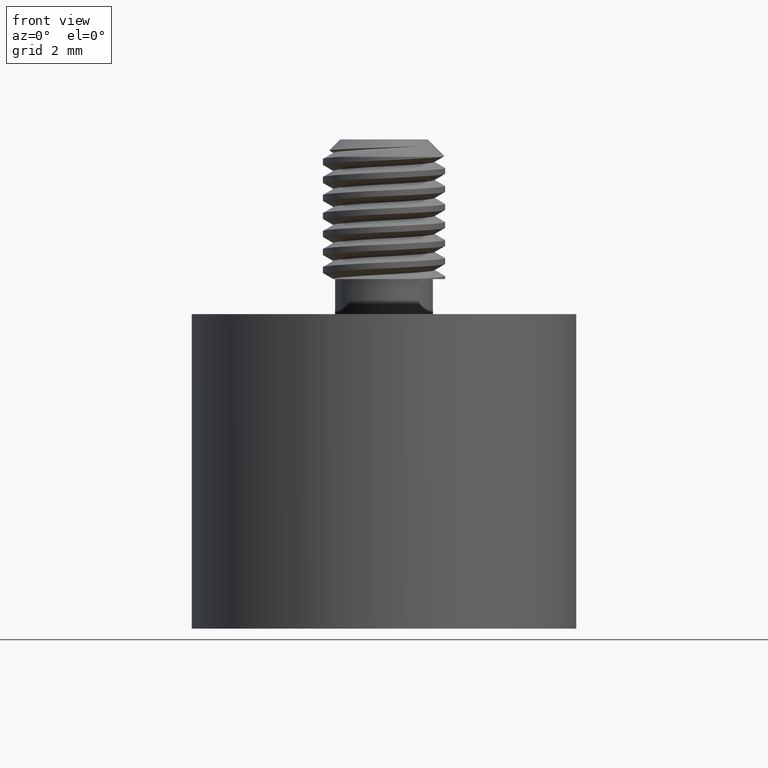
[diagram: clean part render]
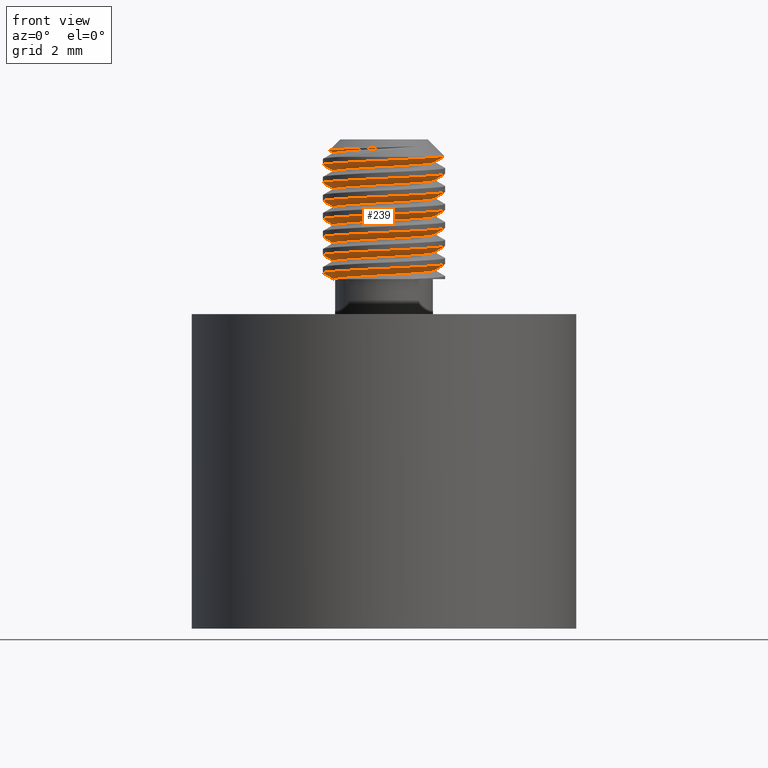
[diagram: same view with one face highlighted and labeled with its STEP entity id]
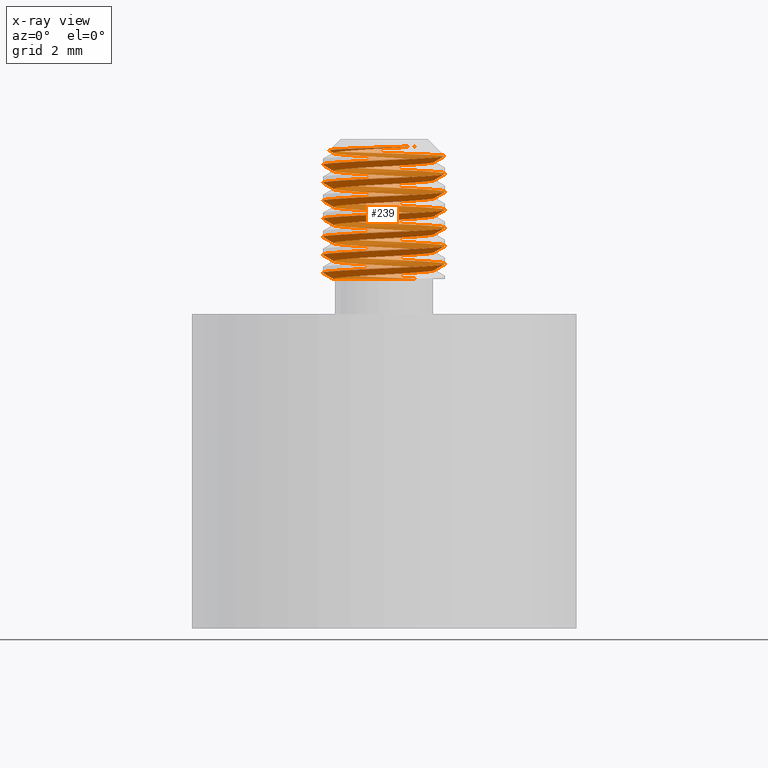
[diagram: x-ray of the same camera — body ghosted, the highlighted face saturated]
A machine part, front view. The second image highlights one B-rep face of the part: STEP entity #239.
The next image is the same camera in x-ray: the body ghosted, the highlighted face saturated — about 38% of this face is hidden behind the body in this view.
In plain terms, the highlighted face is a freeform B-spline surface patch.
Its self-contained STEP definition (entity closure, byte-faithful):
#17 = CARTESIAN_POINT ( 'NONE',  ( -0.02848696314827063900, 0.1121532215534217200, 0.2851178811229174200 ) ) ;
#18 = CARTESIAN_POINT ( 'NONE',  ( -0.006957480476366260900, 0.07486306370500961400, 0.2868095477895840100 ) ) ;
#23 = CARTESIAN_POINT ( 'NONE',  ( -0.05001644582017501800, 0.1494433794018338300, 0.2834262144562507700 ) ) ;
#29 = VERTEX_POINT ( 'NONE', #359 ) ;
#33 = VERTEX_POINT ( 'NONE', #352 ) ;
#35 = EDGE_CURVE ( 'NONE', #33, #36, #349, .T. ) ;
#36 = VERTEX_POINT ( 'NONE', #351 ) ;
#55 = EDGE_CURVE ( 'NONE', #82, #96, #446, .T. ) ;
#63 = EDGE_CURVE ( 'NONE', #144, #117, #493, .T. ) ;
#65 = EDGE_CURVE ( 'NONE', #93, #66, #528, .T. ) ;
#66 = VERTEX_POINT ( 'NONE', #527 ) ;
#77 = VERTEX_POINT ( 'NONE', #535 ) ;
#81 = EDGE_CURVE ( 'NONE', #29, #82, #584, .T. ) ;
#82 = VERTEX_POINT ( 'NONE', #583 ) ;
#93 = VERTEX_POINT ( 'NONE', #614 ) ;
#96 = VERTEX_POINT ( 'NONE', #609 ) ;
#98 = EDGE_CURVE ( 'NONE', #96, #99, #607, .T. ) ;
#99 = VERTEX_POINT ( 'NONE', #608 ) ;
#113 = EDGE_CURVE ( 'NONE', #99, #114, #689, .T. ) ;
#114 = VERTEX_POINT ( 'NONE', #688 ) ;
#117 = VERTEX_POINT ( 'NONE', #722 ) ;
#128 = VERTEX_POINT ( 'NONE', #765 ) ;
#130 = EDGE_CURVE ( 'NONE', #128, #131, #764, .T. ) ;
#131 = VERTEX_POINT ( 'NONE', #763 ) ;
#132 = EDGE_CURVE ( 'NONE', #77, #133, #752, .T. ) ;
#133 = VERTEX_POINT ( 'NONE', #751 ) ;
#144 = VERTEX_POINT ( 'NONE', #838 ) ;
#152 = EDGE_CURVE ( 'NONE', #131, #144, #825, .T. ) ;
#161 = EDGE_CURVE ( 'NONE', #133, #93, #875, .T. ) ;
#169 = EDGE_CURVE ( 'NONE', #117, #77, #919, .T. ) ;
#179 = EDGE_CURVE ( 'NONE', #66, #29, #991, .T. ) ;
#185 = EDGE_CURVE ( 'NONE', #209, #223, #1038, .T. ) ;
#190 = EDGE_CURVE ( 'NONE', #220, #114, #1081, .T. ) ;
#209 = VERTEX_POINT ( 'NONE', #1184 ) ;
#211 = EDGE_CURVE ( 'NONE', #36, #128, #1178, .T. ) ;
#220 = VERTEX_POINT ( 'NONE', #1185 ) ;
#222 = EDGE_CURVE ( 'NONE', #223, #220, #1248, .T. ) ;
#223 = VERTEX_POINT ( 'NONE', #1247 ) ;
#227 = ORIENTED_EDGE ( 'NONE', *, *, #81, .F. ) ;
#228 = ORIENTED_EDGE ( 'NONE', *, *, #179, .F. ) ;
#229 = ORIENTED_EDGE ( 'NONE', *, *, #65, .F. ) ;
#230 = ORIENTED_EDGE ( 'NONE', *, *, #161, .F. ) ;
#231 = ORIENTED_EDGE ( 'NONE', *, *, #132, .F. ) ;
#232 = ORIENTED_EDGE ( 'NONE', *, *, #169, .F. ) ;
#233 = ORIENTED_EDGE ( 'NONE', *, *, #63, .F. ) ;
#234 = ORIENTED_EDGE ( 'NONE', *, *, #152, .F. ) ;
#235 = ORIENTED_EDGE ( 'NONE', *, *, #130, .F. ) ;
#236 = ORIENTED_EDGE ( 'NONE', *, *, #211, .F. ) ;
#239 = ADVANCED_FACE ( 'NONE', ( #1207 ), #1255, .F. ) ;
#240 = EDGE_LOOP ( 'NONE', ( #241, #242, #243, #244, #245, #246, #247, #227, #228, #229, #230, #231, #232, #233, #234, #235, #236, #298, #299 ) ) ;
#241 = ORIENTED_EDGE ( 'NONE', *, *, #264, .F. ) ;
#242 = ORIENTED_EDGE ( 'NONE', *, *, #185, .T. ) ;
#243 = ORIENTED_EDGE ( 'NONE', *, *, #222, .T. ) ;
#244 = ORIENTED_EDGE ( 'NONE', *, *, #190, .T. ) ;
#245 = ORIENTED_EDGE ( 'NONE', *, *, #113, .F. ) ;
#246 = ORIENTED_EDGE ( 'NONE', *, *, #98, .F. ) ;
#247 = ORIENTED_EDGE ( 'NONE', *, *, #55, .F. ) ;
#264 = EDGE_CURVE ( 'NONE', #209, #265, #1747, .T. ) ;
#265 = VERTEX_POINT ( 'NONE', #1748 ) ;
#298 = ORIENTED_EDGE ( 'NONE', *, *, #35, .F. ) ;
#299 = ORIENTED_EDGE ( 'NONE', *, *, #300, .F. ) ;
#300 = EDGE_CURVE ( 'NONE', #265, #33, #1918, .T. ) ;
#349 =( BOUNDED_CURVE ( )  B_SPLINE_CURVE ( 2, ( #397, #396, #395, #394, #393, #392, #391 ),
 .UNSPECIFIED., .F., .T. ) 
 B_SPLINE_CURVE_WITH_KNOTS ( ( 3, 2, 2, 3 ),
 ( 0.1904802800852911600, 0.1999999999999999600, 0.2166666666666666700, 0.2249999999999999800 ),
 .UNSPECIFIED. ) 
 CURVE ( )  GEOMETRIC_REPRESENTATION_ITEM ( )  RATIONAL_B_SPLINE_CURVE ( ( 0.9343704131064954900, 0.9234759621004988700, 1.000000000000000000, 0.8660254037844388200, 1.000000000000000000, 0.9330127018922194100, 0.9330127018922194100 ) ) 
 REPRESENTATION_ITEM ( '' )  );
#351 = CARTESIAN_POINT ( 'NONE',  ( -0.03279615292783313900, 0.1494433794018338300, 0.2801453188400737100 ) ) ;
#352 = CARTESIAN_POINT ( 'NONE',  ( 0.07499581272012879900, 0.2063126659689847900, 0.2731208994956203500 ) ) ;
#359 = CARTESIAN_POINT ( 'NONE',  ( 0.1049991226627180300, 0.1494433794018339700, 0.3714953188400734200 ) ) ;
#391 = CARTESIAN_POINT ( 'NONE',  ( -0.03279615292783313900, 0.1494433794018338300, 0.2801453188400737100 ) ) ;
#392 = CARTESIAN_POINT ( 'NONE',  ( -0.03279615292783314600, 0.1679044458094899100, 0.2792387574056817100 ) ) ;
#393 = CARTESIAN_POINT ( 'NONE',  ( -0.02356561972400512300, 0.1838921982994716200, 0.2784536521734070600 ) ) ;
#394 = CARTESIAN_POINT ( 'NONE',  ( -0.003676584860189275400, 0.2183410171971094100, 0.2767619855067401900 ) ) ;
#395 = CARTESIAN_POINT ( 'NONE',  ( 0.03610148486744245400, 0.2183410171971094400, 0.2750703188400736600 ) ) ;
#396 = CARTESIAN_POINT ( 'NONE',  ( 0.05740857595092544600, 0.2183410171971094400, 0.2741641789495168300 ) ) ;
#397 = CARTESIAN_POINT ( 'NONE',  ( 0.07499581272012879900, 0.2063126659689847900, 0.2731208994956203500 ) ) ;
#442 = CARTESIAN_POINT ( 'NONE',  ( -0.03279615292783318700, 0.1309823129941778700, 0.3825518802744653500 ) ) ;
#443 = CARTESIAN_POINT ( 'NONE',  ( -0.03279615292783313900, 0.1494433794018339400, 0.3816453188400734100 ) ) ;
#446 =( BOUNDED_CURVE ( )  B_SPLINE_CURVE ( 2, ( #443, #442, #488, #487, #486, #485, #484, #483, #482 ),
 .UNSPECIFIED., .F., .T. ) 
 B_SPLINE_CURVE_WITH_KNOTS ( ( 3, 2, 2, 2, 3 ),
 ( 0.7249999999999999800, 0.7333333333333333900, 0.7500000000000000000, 0.7666666666666666100, 0.7750000000000000200 ),
 .UNSPECIFIED. ) 
 CURVE ( )  GEOMETRIC_REPRESENTATION_ITEM ( )  RATIONAL_B_SPLINE_CURVE ( ( 0.9330127018922194100, 0.9330127018922189700, 1.000000000000000000, 0.8660254037844388200, 1.000000000000000000, 0.8660254037844388200, 1.000000000000000000, 0.9330127018922189700, 0.9330127018922194100 ) ) 
 REPRESENTATION_ITEM ( '' )  );
#482 = CARTESIAN_POINT ( 'NONE',  ( 0.1049991226627180200, 0.1494433794018338900, 0.3917953188400734000 ) ) ;
#483 = CARTESIAN_POINT ( 'NONE',  ( 0.1049991226627181000, 0.1309823129941778700, 0.3908887574056814600 ) ) ;
#484 = CARTESIAN_POINT ( 'NONE',  ( 0.09576858945889001100, 0.1149945605041960700, 0.3901036521734068100 ) ) ;
#485 = CARTESIAN_POINT ( 'NONE',  ( 0.07587955459507417200, 0.08054574160655829400, 0.3884119855067400500 ) ) ;
#486 = CARTESIAN_POINT ( 'NONE',  ( 0.03610148486744246100, 0.08054574160655828000, 0.3867203188400734100 ) ) ;
#487 = CARTESIAN_POINT ( 'NONE',  ( -0.003676584860189211200, 0.08054574160655825200, 0.3850286521734066500 ) ) ;
#488 = CARTESIAN_POINT ( 'NONE',  ( -0.02356561972400507100, 0.1149945605041960300, 0.3833369855067401700 ) ) ;
#489 = CARTESIAN_POINT ( 'NONE',  ( 0.07587955459507414500, 0.2183410171971094400, 0.3139786521734068700 ) ) ;
#490 = CARTESIAN_POINT ( 'NONE',  ( 0.09576858945888999700, 0.1838921982994716500, 0.3122869855067402200 ) ) ;
#491 = CARTESIAN_POINT ( 'NONE',  ( 0.1049991226627180200, 0.1679044458094899300, 0.3115018802744655700 ) ) ;
#492 = CARTESIAN_POINT ( 'NONE',  ( 0.1049991226627180200, 0.1494433794018338900, 0.3105953188400736300 ) ) ;
#493 =( BOUNDED_CURVE ( )  B_SPLINE_CURVE ( 2, ( #492, #491, #490, #489, #533, #532, #531, #530, #529 ),
 .UNSPECIFIED., .F., .T. ) 
 B_SPLINE_CURVE_WITH_KNOTS ( ( 3, 2, 2, 2, 3 ),
 ( 0.3750000000000000000, 0.3833333333333333000, 0.4000000000000000200, 0.4166666666666666300, 0.4249999999999999300 ),
 .UNSPECIFIED. ) 
 CURVE ( )  GEOMETRIC_REPRESENTATION_ITEM ( )  RATIONAL_B_SPLINE_CURVE ( ( 0.9330127018922194100, 0.9330127018922194100, 1.000000000000000000, 0.8660254037844388200, 1.000000000000000000, 0.8660254037844388200, 1.000000000000000000, 0.9330127018922198500, 0.9330127018922194100 ) ) 
 REPRESENTATION_ITEM ( '' )  );
#517 = CARTESIAN_POINT ( 'NONE',  ( -0.03279615292783313900, 0.1494433794018338300, 0.3613453188400734800 ) ) ;
#518 = CARTESIAN_POINT ( 'NONE',  ( -0.03279615292783314600, 0.1679044458094899100, 0.3604387574056815400 ) ) ;
#519 = CARTESIAN_POINT ( 'NONE',  ( -0.02356561972400512300, 0.1838921982994716200, 0.3596536521734068300 ) ) ;
#520 = CARTESIAN_POINT ( 'NONE',  ( -0.003676584860189275400, 0.2183410171971094100, 0.3579619855067400800 ) ) ;
#521 = CARTESIAN_POINT ( 'NONE',  ( 0.03610148486744245400, 0.2183410171971094400, 0.3562703188400734900 ) ) ;
#522 = CARTESIAN_POINT ( 'NONE',  ( 0.07587955459507414500, 0.2183410171971094400, 0.3545786521734067800 ) ) ;
#523 = CARTESIAN_POINT ( 'NONE',  ( 0.09576858945888999700, 0.1838921982994716500, 0.3528869855067401900 ) ) ;
#524 = CARTESIAN_POINT ( 'NONE',  ( 0.1049991226627180200, 0.1679044458094899300, 0.3521018802744654300 ) ) ;
#525 = CARTESIAN_POINT ( 'NONE',  ( 0.1049991226627180200, 0.1494433794018339700, 0.3511953188400734900 ) ) ;
#527 = CARTESIAN_POINT ( 'NONE',  ( -0.03279615292783313900, 0.1494433794018338300, 0.3613453188400734800 ) ) ;
#528 =( BOUNDED_CURVE ( )  B_SPLINE_CURVE ( 2, ( #525, #524, #523, #522, #521, #520, #519, #518, #517 ),
 .UNSPECIFIED., .F., .T. ) 
 B_SPLINE_CURVE_WITH_KNOTS ( ( 3, 2, 2, 2, 3 ),
 ( 0.5749999999999999600, 0.5833333333333332600, 0.5999999999999999800, 0.6166666666666667000, 0.6250000000000000000 ),
 .UNSPECIFIED. ) 
 CURVE ( )  GEOMETRIC_REPRESENTATION_ITEM ( )  RATIONAL_B_SPLINE_CURVE ( ( 0.9330127018922194100, 0.9330127018922194100, 1.000000000000000000, 0.8660254037844388200, 1.000000000000000000, 0.8660254037844388200, 1.000000000000000000, 0.9330127018922194100, 0.9330127018922194100 ) ) 
 REPRESENTATION_ITEM ( '' )  );
#529 = CARTESIAN_POINT ( 'NONE',  ( -0.03279615292783313900, 0.1494433794018341100, 0.3207453188400735100 ) ) ;
#530 = CARTESIAN_POINT ( 'NONE',  ( -0.03279615292783308300, 0.1679044458094900400, 0.3198387574056815200 ) ) ;
#531 = CARTESIAN_POINT ( 'NONE',  ( -0.02356561972400512300, 0.1838921982994716200, 0.3190536521734068700 ) ) ;
#532 = CARTESIAN_POINT ( 'NONE',  ( -0.003676584860189275400, 0.2183410171971094100, 0.3173619855067402700 ) ) ;
#533 = CARTESIAN_POINT ( 'NONE',  ( 0.03610148486744245400, 0.2183410171971094400, 0.3156703188400736300 ) ) ;
#535 = CARTESIAN_POINT ( 'NONE',  ( 0.1049991226627180300, 0.1494433794018338600, 0.3308953188400735000 ) ) ;
#573 = CARTESIAN_POINT ( 'NONE',  ( -0.03279615292783313900, 0.1494433794018339400, 0.3816453188400734100 ) ) ;
#574 = CARTESIAN_POINT ( 'NONE',  ( -0.03279615292783308300, 0.1679044458094900400, 0.3807387574056813600 ) ) ;
#575 = CARTESIAN_POINT ( 'NONE',  ( -0.02356561972400512300, 0.1838921982994716200, 0.3799536521734067600 ) ) ;
#576 = CARTESIAN_POINT ( 'NONE',  ( -0.003676584860189275400, 0.2183410171971094100, 0.3782619855067399500 ) ) ;
#577 = CARTESIAN_POINT ( 'NONE',  ( 0.03610148486744245400, 0.2183410171971094400, 0.3765703188400734700 ) ) ;
#578 = CARTESIAN_POINT ( 'NONE',  ( 0.07587955459507414500, 0.2183410171971094400, 0.3748786521734067700 ) ) ;
#579 = CARTESIAN_POINT ( 'NONE',  ( 0.09576858945888999700, 0.1838921982994716500, 0.3731869855067401200 ) ) ;
#580 = CARTESIAN_POINT ( 'NONE',  ( 0.1049991226627180200, 0.1679044458094899300, 0.3724018802744653000 ) ) ;
#581 = CARTESIAN_POINT ( 'NONE',  ( 0.1049991226627180200, 0.1494433794018339700, 0.3714953188400734200 ) ) ;
#583 = CARTESIAN_POINT ( 'NONE',  ( -0.03279615292783313900, 0.1494433794018339400, 0.3816453188400734100 ) ) ;
#584 =( BOUNDED_CURVE ( )  B_SPLINE_CURVE ( 2, ( #581, #580, #579, #578, #577, #576, #575, #574, #573 ),
 .UNSPECIFIED., .F., .T. ) 
 B_SPLINE_CURVE_WITH_KNOTS ( ( 3, 2, 2, 2, 3 ),
 ( 0.6750000000000000400, 0.6833333333333333500, 0.6999999999999999600, 0.7166666666666666700, 0.7249999999999999800 ),
 .UNSPECIFIED. ) 
 CURVE ( )  GEOMETRIC_REPRESENTATION_ITEM ( )  RATIONAL_B_SPLINE_CURVE ( ( 0.9330127018922194100, 0.9330127018922194100, 1.000000000000000000, 0.8660254037844388200, 1.000000000000000000, 0.8660254037844388200, 1.000000000000000000, 0.9330127018922198500, 0.9330127018922194100 ) ) 
 REPRESENTATION_ITEM ( '' )  );
#602 = CARTESIAN_POINT ( 'NONE',  ( 0.03610148486744245400, 0.2183410171971094400, 0.3968703188400734500 ) ) ;
#603 = CARTESIAN_POINT ( 'NONE',  ( 0.07587955459507414500, 0.2183410171971094400, 0.3951786521734065900 ) ) ;
#604 = CARTESIAN_POINT ( 'NONE',  ( 0.09576858945888999700, 0.1838921982994716500, 0.3934869855067400500 ) ) ;
#605 = CARTESIAN_POINT ( 'NONE',  ( 0.1049991226627179800, 0.1679044458094900700, 0.3927018802744654000 ) ) ;
#606 = CARTESIAN_POINT ( 'NONE',  ( 0.1049991226627180200, 0.1494433794018338900, 0.3917953188400734000 ) ) ;
#607 =( BOUNDED_CURVE ( )  B_SPLINE_CURVE ( 2, ( #606, #605, #604, #603, #602, #654, #653, #652, #651 ),
 .UNSPECIFIED., .F., .T. ) 
 B_SPLINE_CURVE_WITH_KNOTS ( ( 3, 2, 2, 2, 3 ),
 ( 0.7750000000000000200, 0.7833333333333333300, 0.8000000000000000400, 0.8166666666666666500, 0.8249999999999999600 ),
 .UNSPECIFIED. ) 
 CURVE ( )  GEOMETRIC_REPRESENTATION_ITEM ( )  RATIONAL_B_SPLINE_CURVE ( ( 0.9330127018922194100, 0.9330127018922198500, 1.000000000000000000, 0.8660254037844388200, 1.000000000000000000, 0.8660254037844388200, 1.000000000000000000, 0.9330127018922198500, 0.9330127018922194100 ) ) 
 REPRESENTATION_ITEM ( '' )  );
#608 = CARTESIAN_POINT ( 'NONE',  ( -0.03279615292783313900, 0.1494433794018338300, 0.4019453188400734000 ) ) ;
#609 = CARTESIAN_POINT ( 'NONE',  ( 0.1049991226627180300, 0.1494433794018338600, 0.3917953188400734000 ) ) ;
#614 = CARTESIAN_POINT ( 'NONE',  ( 0.1049991226627180300, 0.1494433794018339700, 0.3511953188400734900 ) ) ;
#651 = CARTESIAN_POINT ( 'NONE',  ( -0.03279615292783313900, 0.1494433794018338300, 0.4019453188400734000 ) ) ;
#652 = CARTESIAN_POINT ( 'NONE',  ( -0.03279615292783308300, 0.1679044458094900400, 0.4010387574056813500 ) ) ;
#653 = CARTESIAN_POINT ( 'NONE',  ( -0.02356561972400512300, 0.1838921982994716200, 0.4002536521734066900 ) ) ;
#654 = CARTESIAN_POINT ( 'NONE',  ( -0.003676584860189275400, 0.2183410171971094100, 0.3985619855067400500 ) ) ;
#683 = CARTESIAN_POINT ( 'NONE',  ( -0.003676584860189211200, 0.08054574160655825200, 0.4053286521734066900 ) ) ;
#684 = CARTESIAN_POINT ( 'NONE',  ( -0.02356561972400507100, 0.1149945605041960300, 0.4036369855067400400 ) ) ;
#685 = CARTESIAN_POINT ( 'NONE',  ( -0.03279615292783318700, 0.1309823129941778700, 0.4028518802744653300 ) ) ;
#686 = CARTESIAN_POINT ( 'NONE',  ( -0.03279615292783313900, 0.1494433794018338300, 0.4019453188400734000 ) ) ;
#688 = CARTESIAN_POINT ( 'NONE',  ( 0.1006794513422295500, 0.1254314919343674200, 0.4109161750861711800 ) ) ;
#689 =( BOUNDED_CURVE ( )  B_SPLINE_CURVE ( 2, ( #686, #685, #684, #683, #731, #730, #729, #728, #727 ),
 .UNSPECIFIED., .F., .T. ) 
 B_SPLINE_CURVE_WITH_KNOTS ( ( 3, 2, 2, 2, 3 ),
 ( 0.8249999999999999600, 0.8333333333333333700, 0.8499999999999999800, 0.8666666666666667000, 0.8694051209142749100 ),
 .UNSPECIFIED. ) 
 CURVE ( )  GEOMETRIC_REPRESENTATION_ITEM ( )  RATIONAL_B_SPLINE_CURVE ( ( 0.9330127018922194100, 0.9330127018922189700, 1.000000000000000000, 0.8660254037844388200, 1.000000000000000000, 0.8660254037844388200, 1.000000000000000000, 0.9779870018753139500, 0.9632077943366845800 ) ) 
 REPRESENTATION_ITEM ( '' )  );
#722 = CARTESIAN_POINT ( 'NONE',  ( -0.03279615292783313900, 0.1494433794018341100, 0.3207453188400735100 ) ) ;
#727 = CARTESIAN_POINT ( 'NONE',  ( 0.1006794513422295500, 0.1254314919343674200, 0.4109161750861711800 ) ) ;
#728 = CARTESIAN_POINT ( 'NONE',  ( 0.09866238603045271400, 0.1200067631929113100, 0.4106497847401072200 ) ) ;
#729 = CARTESIAN_POINT ( 'NONE',  ( 0.09576858945889001100, 0.1149945605041960700, 0.4104036521734066900 ) ) ;
#730 = CARTESIAN_POINT ( 'NONE',  ( 0.07587955459507417200, 0.08054574160655829400, 0.4087119855067398700 ) ) ;
#731 = CARTESIAN_POINT ( 'NONE',  ( 0.03610148486744246100, 0.08054574160655828000, 0.4070203188400733900 ) ) ;
#751 = CARTESIAN_POINT ( 'NONE',  ( -0.03279615292783313900, 0.1494433794018339400, 0.3410453188400734400 ) ) ;
#752 =( BOUNDED_CURVE ( )  B_SPLINE_CURVE ( 2, ( #799, #798, #797, #796, #795, #794, #793, #792, #791 ),
 .UNSPECIFIED., .F., .F. ) 
 B_SPLINE_CURVE_WITH_KNOTS ( ( 3, 2, 2, 2, 3 ),
 ( 0.4749999999999999800, 0.4833333333333332800, 0.5000000000000000000, 0.5166666666666666100, 0.5249999999999999100 ),
 .UNSPECIFIED. ) 
 CURVE ( )  GEOMETRIC_REPRESENTATION_ITEM ( )  RATIONAL_B_SPLINE_CURVE ( ( 0.9330127018922194100, 0.9330127018922194100, 1.000000000000000000, 0.8660254037844388200, 1.000000000000000000, 0.8660254037844388200, 1.000000000000000000, 0.9330127018922198500, 0.9330127018922194100 ) ) 
 REPRESENTATION_ITEM ( '' )  );
#754 = CARTESIAN_POINT ( 'NONE',  ( -0.03279615292783313900, 0.1494433794018341100, 0.3004453188400735300 ) ) ;
#755 = CARTESIAN_POINT ( 'NONE',  ( -0.03279615292783308300, 0.1679044458094900400, 0.2995387574056816400 ) ) ;
#756 = CARTESIAN_POINT ( 'NONE',  ( -0.02356561972400512300, 0.1838921982994716200, 0.2987536521734069400 ) ) ;
#757 = CARTESIAN_POINT ( 'NONE',  ( -0.003676584860189275400, 0.2183410171971094100, 0.2970619855067402300 ) ) ;
#758 = CARTESIAN_POINT ( 'NONE',  ( 0.03610148486744245400, 0.2183410171971094400, 0.2953703188400737000 ) ) ;
#759 = CARTESIAN_POINT ( 'NONE',  ( 0.07587955459507414500, 0.2183410171971094400, 0.2936786521734068800 ) ) ;
#760 = CARTESIAN_POINT ( 'NONE',  ( 0.09576858945888999700, 0.1838921982994716500, 0.2919869855067402900 ) ) ;
#761 = CARTESIAN_POINT ( 'NONE',  ( 0.1049991226627180200, 0.1679044458094899300, 0.2912018802744655900 ) ) ;
#762 = CARTESIAN_POINT ( 'NONE',  ( 0.1049991226627180200, 0.1494433794018338900, 0.2902953188400736500 ) ) ;
#763 = CARTESIAN_POINT ( 'NONE',  ( -0.03279615292783313900, 0.1494433794018341100, 0.3004453188400735300 ) ) ;
#764 =( BOUNDED_CURVE ( )  B_SPLINE_CURVE ( 2, ( #762, #761, #760, #759, #758, #757, #756, #755, #754 ),
 .UNSPECIFIED., .F., .T. ) 
 B_SPLINE_CURVE_WITH_KNOTS ( ( 3, 2, 2, 2, 3 ),
 ( 0.2750000000000000200, 0.2833333333333333300, 0.3000000000000000400, 0.3166666666666666500, 0.3249999999999999600 ),
 .UNSPECIFIED. ) 
 CURVE ( )  GEOMETRIC_REPRESENTATION_ITEM ( )  RATIONAL_B_SPLINE_CURVE ( ( 0.9330127018922194100, 0.9330127018922194100, 1.000000000000000000, 0.8660254037844388200, 1.000000000000000000, 0.8660254037844388200, 1.000000000000000000, 0.9330127018922198500, 0.9330127018922194100 ) ) 
 REPRESENTATION_ITEM ( '' )  );
#765 = CARTESIAN_POINT ( 'NONE',  ( 0.1049991226627180300, 0.1494433794018338600, 0.2902953188400736500 ) ) ;
#791 = CARTESIAN_POINT ( 'NONE',  ( -0.03279615292783313900, 0.1494433794018339400, 0.3410453188400734400 ) ) ;
#792 = CARTESIAN_POINT ( 'NONE',  ( -0.03279615292783308300, 0.1679044458094900400, 0.3401387574056815600 ) ) ;
#793 = CARTESIAN_POINT ( 'NONE',  ( -0.02356561972400512300, 0.1838921982994716200, 0.3393536521734068500 ) ) ;
#794 = CARTESIAN_POINT ( 'NONE',  ( -0.003676584860189275400, 0.2183410171971094100, 0.3376619855067400900 ) ) ;
#795 = CARTESIAN_POINT ( 'NONE',  ( 0.03610148486744245400, 0.2183410171971094400, 0.3359703188400736100 ) ) ;
#796 = CARTESIAN_POINT ( 'NONE',  ( 0.07587955459507414500, 0.2183410171971094400, 0.3342786521734068000 ) ) ;
#797 = CARTESIAN_POINT ( 'NONE',  ( 0.09576858945888999700, 0.1838921982994716500, 0.3325869855067402100 ) ) ;
#798 = CARTESIAN_POINT ( 'NONE',  ( 0.1049991226627180200, 0.1679044458094899300, 0.3318018802744654400 ) ) ;
#799 = CARTESIAN_POINT ( 'NONE',  ( 0.1049991226627180200, 0.1494433794018338900, 0.3308953188400735000 ) ) ;
#821 = CARTESIAN_POINT ( 'NONE',  ( -0.003676584860189211200, 0.08054574160655825200, 0.3038286521734069300 ) ) ;
#822 = CARTESIAN_POINT ( 'NONE',  ( -0.02356561972400507100, 0.1149945605041960300, 0.3021369855067402900 ) ) ;
#823 = CARTESIAN_POINT ( 'NONE',  ( -0.03279615292783318700, 0.1309823129941778700, 0.3013518802744655200 ) ) ;
#824 = CARTESIAN_POINT ( 'NONE',  ( -0.03279615292783313900, 0.1494433794018341100, 0.3004453188400735300 ) ) ;
#825 =( BOUNDED_CURVE ( )  B_SPLINE_CURVE ( 2, ( #824, #823, #822, #821, #866, #865, #864, #863, #862 ),
 .UNSPECIFIED., .F., .T. ) 
 B_SPLINE_CURVE_WITH_KNOTS ( ( 3, 2, 2, 2, 3 ),
 ( 0.3249999999999999600, 0.3333333333333333700, 0.3499999999999999800, 0.3666666666666667000, 0.3750000000000000000 ),
 .UNSPECIFIED. ) 
 CURVE ( )  GEOMETRIC_REPRESENTATION_ITEM ( )  RATIONAL_B_SPLINE_CURVE ( ( 0.9330127018922194100, 0.9330127018922189700, 1.000000000000000000, 0.8660254037844388200, 1.000000000000000000, 0.8660254037844388200, 1.000000000000000000, 0.9330127018922194100, 0.9330127018922194100 ) ) 
 REPRESENTATION_ITEM ( '' )  );
#838 = CARTESIAN_POINT ( 'NONE',  ( 0.1049991226627180300, 0.1494433794018338600, 0.3105953188400736300 ) ) ;
#862 = CARTESIAN_POINT ( 'NONE',  ( 0.1049991226627180200, 0.1494433794018338900, 0.3105953188400736300 ) ) ;
#863 = CARTESIAN_POINT ( 'NONE',  ( 0.1049991226627180200, 0.1309823129941777600, 0.3096887574056816900 ) ) ;
#864 = CARTESIAN_POINT ( 'NONE',  ( 0.09576858945889001100, 0.1149945605041960700, 0.3089036521734069800 ) ) ;
#865 = CARTESIAN_POINT ( 'NONE',  ( 0.07587955459507417200, 0.08054574160655829400, 0.3072119855067401700 ) ) ;
#866 = CARTESIAN_POINT ( 'NONE',  ( 0.03610148486744246100, 0.08054574160655828000, 0.3055203188400736900 ) ) ;
#867 = CARTESIAN_POINT ( 'NONE',  ( 0.07587955459507417200, 0.08054574160655829400, 0.3478119855067402000 ) ) ;
#868 = CARTESIAN_POINT ( 'NONE',  ( 0.03610148486744246100, 0.08054574160655828000, 0.3461203188400734900 ) ) ;
#869 = CARTESIAN_POINT ( 'NONE',  ( -0.003676584860189211200, 0.08054574160655825200, 0.3444286521734067400 ) ) ;
#870 = CARTESIAN_POINT ( 'NONE',  ( -0.02356561972400507100, 0.1149945605041960300, 0.3427369855067402000 ) ) ;
#871 = CARTESIAN_POINT ( 'NONE',  ( -0.03279615292783318700, 0.1309823129941778700, 0.3419518802744654400 ) ) ;
#872 = CARTESIAN_POINT ( 'NONE',  ( -0.03279615292783313900, 0.1494433794018339400, 0.3410453188400734400 ) ) ;
#875 =( BOUNDED_CURVE ( )  B_SPLINE_CURVE ( 2, ( #872, #871, #870, #869, #868, #867, #911, #910, #909 ),
 .UNSPECIFIED., .F., .T. ) 
 B_SPLINE_CURVE_WITH_KNOTS ( ( 3, 2, 2, 2, 3 ),
 ( 0.5249999999999999100, 0.5333333333333333300, 0.5500000000000000400, 0.5666666666666666500, 0.5749999999999999600 ),
 .UNSPECIFIED. ) 
 CURVE ( )  GEOMETRIC_REPRESENTATION_ITEM ( )  RATIONAL_B_SPLINE_CURVE ( ( 0.9330127018922194100, 0.9330127018922189700, 1.000000000000000000, 0.8660254037844388200, 1.000000000000000000, 0.8660254037844388200, 1.000000000000000000, 0.9330127018922194100, 0.9330127018922194100 ) ) 
 REPRESENTATION_ITEM ( '' )  );
#890 = CARTESIAN_POINT ( 'NONE',  ( -0.006957480476366330300, 0.2240236950986580500, 0.2800428811229173600 ) ) ;
#891 = CARTESIAN_POINT ( 'NONE',  ( -0.02848696314827069100, 0.1867335372502459400, 0.2817345477895840100 ) ) ;
#909 = CARTESIAN_POINT ( 'NONE',  ( 0.1049991226627180200, 0.1494433794018339700, 0.3511953188400734900 ) ) ;
#910 = CARTESIAN_POINT ( 'NONE',  ( 0.1049991226627180200, 0.1309823129941777600, 0.3502887574056814400 ) ) ;
#911 = CARTESIAN_POINT ( 'NONE',  ( 0.09576858945889001100, 0.1149945605041960700, 0.3495036521734068400 ) ) ;
#912 = CARTESIAN_POINT ( 'NONE',  ( 0.03610148486744246100, 0.08054574160655828000, 0.3258203188400736700 ) ) ;
#913 = CARTESIAN_POINT ( 'NONE',  ( -0.003676584860189211200, 0.08054574160655825200, 0.3241286521734069200 ) ) ;
#914 = CARTESIAN_POINT ( 'NONE',  ( -0.02356561972400507100, 0.1149945605041960300, 0.3224369855067402100 ) ) ;
#915 = CARTESIAN_POINT ( 'NONE',  ( -0.03279615292783318700, 0.1309823129941778700, 0.3216518802744655100 ) ) ;
#916 = CARTESIAN_POINT ( 'NONE',  ( -0.03279615292783313900, 0.1494433794018341100, 0.3207453188400735100 ) ) ;
#919 =( BOUNDED_CURVE ( )  B_SPLINE_CURVE ( 2, ( #916, #915, #914, #913, #912, #957, #956, #955, #954 ),
 .UNSPECIFIED., .F., .T. ) 
 B_SPLINE_CURVE_WITH_KNOTS ( ( 3, 2, 2, 2, 3 ),
 ( 0.4249999999999999300, 0.4333333333333333500, 0.4499999999999999600, 0.4666666666666666700, 0.4749999999999999800 ),
 .UNSPECIFIED. ) 
 CURVE ( )  GEOMETRIC_REPRESENTATION_ITEM ( )  RATIONAL_B_SPLINE_CURVE ( ( 0.9330127018922194100, 0.9330127018922189700, 1.000000000000000000, 0.8660254037844388200, 1.000000000000000000, 0.8660254037844388200, 1.000000000000000000, 0.9330127018922194100, 0.9330127018922194100 ) ) 
 REPRESENTATION_ITEM ( '' )  );
#954 = CARTESIAN_POINT ( 'NONE',  ( 0.1049991226627180200, 0.1494433794018338900, 0.3308953188400735000 ) ) ;
#955 = CARTESIAN_POINT ( 'NONE',  ( 0.1049991226627180200, 0.1309823129941777600, 0.3299887574056815700 ) ) ;
#956 = CARTESIAN_POINT ( 'NONE',  ( 0.09576858945889001100, 0.1149945605041960700, 0.3292036521734069100 ) ) ;
#957 = CARTESIAN_POINT ( 'NONE',  ( 0.07587955459507417200, 0.08054574160655829400, 0.3275119855067401600 ) ) ;
#980 = CARTESIAN_POINT ( 'NONE',  ( 0.1049991226627180200, 0.1494433794018339700, 0.3714953188400734200 ) ) ;
#981 = CARTESIAN_POINT ( 'NONE',  ( 0.1049991226627180200, 0.1309823129941777600, 0.3705887574056814800 ) ) ;
#982 = CARTESIAN_POINT ( 'NONE',  ( 0.09576858945889001100, 0.1149945605041960700, 0.3698036521734068300 ) ) ;
#983 = CARTESIAN_POINT ( 'NONE',  ( 0.07587955459507417200, 0.08054574160655829400, 0.3681119855067400700 ) ) ;
#984 = CARTESIAN_POINT ( 'NONE',  ( 0.03610148486744246100, 0.08054574160655828000, 0.3664203188400734800 ) ) ;
#985 = CARTESIAN_POINT ( 'NONE',  ( -0.003676584860189211200, 0.08054574160655825200, 0.3647286521734067200 ) ) ;
#986 = CARTESIAN_POINT ( 'NONE',  ( -0.02356561972400507100, 0.1149945605041960300, 0.3630369855067400700 ) ) ;
#987 = CARTESIAN_POINT ( 'NONE',  ( -0.03279615292783312500, 0.1309823129941777300, 0.3622518802744654200 ) ) ;
#988 = CARTESIAN_POINT ( 'NONE',  ( -0.03279615292783313900, 0.1494433794018338300, 0.3613453188400734800 ) ) ;
#991 =( BOUNDED_CURVE ( )  B_SPLINE_CURVE ( 2, ( #988, #987, #986, #985, #984, #983, #982, #981, #980 ),
 .UNSPECIFIED., .F., .T. ) 
 B_SPLINE_CURVE_WITH_KNOTS ( ( 3, 2, 2, 2, 3 ),
 ( 0.6250000000000000000, 0.6333333333333333000, 0.6500000000000000200, 0.6666666666666667400, 0.6750000000000000400 ),
 .UNSPECIFIED. ) 
 CURVE ( )  GEOMETRIC_REPRESENTATION_ITEM ( )  RATIONAL_B_SPLINE_CURVE ( ( 0.9330127018922194100, 0.9330127018922194100, 1.000000000000000000, 0.8660254037844388200, 1.000000000000000000, 0.8660254037844388200, 1.000000000000000000, 0.9330127018922194100, 0.9330127018922194100 ) ) 
 REPRESENTATION_ITEM ( '' )  );
#1024 = CARTESIAN_POINT ( 'NONE',  ( -0.02541688418351049900, 0.1437786896104408500, 0.4182954438304908300 ) ) ;
#1025 = CARTESIAN_POINT ( 'NONE',  ( -0.02445675608298888300, 0.1382238040941929600, 0.4184903922812139900 ) ) ;
#1026 = CARTESIAN_POINT ( 'NONE',  ( -0.02097243200277486600, 0.1273390351833763000, 0.4188760042791079800 ) ) ;
#1027 = CARTESIAN_POINT ( 'NONE',  ( -0.01850875433142487900, 0.1222088570440031400, 0.4190541381538441800 ) ) ;
#1028 = CARTESIAN_POINT ( 'NONE',  ( -0.009066347495386687200, 0.1080152627957388000, 0.4195860411790633400 ) ) ;
#1029 = CARTESIAN_POINT ( 'NONE',  ( 5.229751107569115100E-005, 0.1003951282017848400, 0.4200006437914710600 ) ) ;
#1030 = CARTESIAN_POINT ( 'NONE',  ( 0.02077998916740425600, 0.09135835622209921600, 0.4208141646619439300 ) ) ;
#1031 = CARTESIAN_POINT ( 'NONE',  ( 0.03260299071661045000, 0.08982930167767880200, 0.4211845812894704500 ) ) ;
#1032 = CARTESIAN_POINT ( 'NONE',  ( 0.04939357278848331000, 0.09265181626865919000, 0.4217639333585729800 ) ) ;
#1033 = CARTESIAN_POINT ( 'NONE',  ( 0.05483914833167687100, 0.09442218997640707000, 0.4219692906760642600 ) ) ;
#1034 = CARTESIAN_POINT ( 'NONE',  ( 0.06503636809800826500, 0.09951777984043812300, 0.4223912529384008500 ) ) ;
#1035 = CARTESIAN_POINT ( 'NONE',  ( 0.06966815954116356600, 0.1027608202508115300, 0.4226024420593199000 ) ) ;
#1036 = CARTESIAN_POINT ( 'NONE',  ( 0.07382450167280711600, 0.1067119623518204100, 0.4228138128814468700 ) ) ;
#1038 = B_SPLINE_CURVE_WITH_KNOTS ( 'NONE', 3,
 ( #1036, #1035, #1034, #1033, #1032, #1031, #1030, #1029, #1028, #1027, #1026, #1025, #1024, #1083 ),
 .UNSPECIFIED., .F., .F.,
 ( 4, 2, 2, 2, 2, 2, 4 ),
 ( 0.0000000000000000000, 0.0004310737825565726300, 0.0008621475651131452500, 0.001724295130226290500, 0.002586442695339435800, 0.003017516477896008400, 0.003448590260452581000 ),
 .UNSPECIFIED. ) ;
#1058 = CARTESIAN_POINT ( 'NONE',  ( 0.1006794513422295500, 0.1254314919343674200, 0.4109161750861711800 ) ) ;
#1059 = CARTESIAN_POINT ( 'NONE',  ( 0.1033142453367897300, 0.1332044441624772600, 0.4111555681404249800 ) ) ;
#1060 = CARTESIAN_POINT ( 'NONE',  ( 0.1045083321840533500, 0.1412856068844805800, 0.4114069655648354100 ) ) ;
#1061 = CARTESIAN_POINT ( 'NONE',  ( 0.1042515754774580200, 0.1494433794018303300, 0.4116637222714313300 ) ) ;
#1081 = B_SPLINE_CURVE_WITH_KNOTS ( 'NONE', 3,
 ( #1061, #1060, #1059, #1058 ),
 .UNSPECIFIED., .F., .F.,
 ( 4, 4 ),
 ( 0.008616216186948244500, 0.009234177957161596200 ),
 .UNSPECIFIED. ) ;
#1083 = CARTESIAN_POINT ( 'NONE',  ( -0.02561376359098388800, 0.1494433794017981700, 0.4180985644230206800 ) ) ;
#1089 = CARTESIAN_POINT ( 'NONE',  ( 0.1006899328831555700, 0.1867335372502459700, 0.2749678811229174200 ) ) ;
#1090 = CARTESIAN_POINT ( 'NONE',  ( 0.07916045021125119000, 0.2240236950986580800, 0.2766595477895841300 ) ) ;
#1092 = CARTESIAN_POINT ( 'NONE',  ( 0.03610148486744245400, 0.2240236950986580800, 0.2783512144562507200 ) ) ;
#1167 = CARTESIAN_POINT ( 'NONE',  ( 0.1049991226627180200, 0.1494433794018338900, 0.2902953188400736500 ) ) ;
#1168 = CARTESIAN_POINT ( 'NONE',  ( 0.1049991226627180200, 0.1309823129941777600, 0.2893887574056817100 ) ) ;
#1169 = CARTESIAN_POINT ( 'NONE',  ( 0.09576858945889001100, 0.1149945605041960700, 0.2886036521734070500 ) ) ;
#1170 = CARTESIAN_POINT ( 'NONE',  ( 0.07587955459507417200, 0.08054574160655829400, 0.2869119855067403000 ) ) ;
#1171 = CARTESIAN_POINT ( 'NONE',  ( 0.03610148486744246100, 0.08054574160655828000, 0.2852203188400735900 ) ) ;
#1172 = CARTESIAN_POINT ( 'NONE',  ( -0.003676584860189211200, 0.08054574160655825200, 0.2835286521734069500 ) ) ;
#1173 = CARTESIAN_POINT ( 'NONE',  ( -0.02356561972400507100, 0.1149945605041960300, 0.2818369855067403600 ) ) ;
#1174 = CARTESIAN_POINT ( 'NONE',  ( -0.03279615292783312500, 0.1309823129941777300, 0.2810518802744656500 ) ) ;
#1175 = CARTESIAN_POINT ( 'NONE',  ( -0.03279615292783313900, 0.1494433794018338300, 0.2801453188400737100 ) ) ;
#1178 =( BOUNDED_CURVE ( )  B_SPLINE_CURVE ( 2, ( #1175, #1174, #1173, #1172, #1171, #1170, #1169, #1168, #1167 ),
 .UNSPECIFIED., .F., .T. ) 
 B_SPLINE_CURVE_WITH_KNOTS ( ( 3, 2, 2, 2, 3 ),
 ( 0.2249999999999999800, 0.2333333333333332800, 0.2500000000000000000, 0.2666666666666667200, 0.2750000000000000200 ),
 .UNSPECIFIED. ) 
 CURVE ( )  GEOMETRIC_REPRESENTATION_ITEM ( )  RATIONAL_B_SPLINE_CURVE ( ( 0.9330127018922194100, 0.9330127018922194100, 1.000000000000000000, 0.8660254037844388200, 1.000000000000000000, 0.8660254037844388200, 1.000000000000000000, 0.9330127018922194100, 0.9330127018922194100 ) ) 
 REPRESENTATION_ITEM ( '' )  );
#1184 = CARTESIAN_POINT ( 'NONE',  ( 0.07382450167280711600, 0.1067119623518204100, 0.4228138128814468700 ) ) ;
#1185 = CARTESIAN_POINT ( 'NONE',  ( 0.1042515754774580200, 0.1494433794018303300, 0.4116637222714313300 ) ) ;
#1207 = FACE_OUTER_BOUND ( 'NONE', #240, .T. ) ;
#1208 = CARTESIAN_POINT ( 'NONE',  ( 0.1042515754774580200, 0.1494433794018303300, 0.4116637222714313300 ) ) ;
#1209 = CARTESIAN_POINT ( 'NONE',  ( 0.1039831886051304500, 0.1579706700035927400, 0.4119321091437591100 ) ) ;
#1210 = CARTESIAN_POINT ( 'NONE',  ( 0.1021301371771775500, 0.1663369658493420400, 0.4121986841610484900 ) ) ;
#1211 = CARTESIAN_POINT ( 'NONE',  ( 0.09705244938216299500, 0.1781456744269539800, 0.4125791553324718000 ) ) ;
#1212 = CARTESIAN_POINT ( 'NONE',  ( 0.09502015769822098900, 0.1818673205586165400, 0.4126959013471866400 ) ) ;
#1213 = CARTESIAN_POINT ( 'NONE',  ( 0.09027838118320143100, 0.1888819430790474300, 0.4129361000035974300 ) ) ;
#1214 = CARTESIAN_POINT ( 'NONE',  ( 0.08753178904060567000, 0.1922048052365108200, 0.4130642071164504200 ) ) ;
#1215 = CARTESIAN_POINT ( 'NONE',  ( 0.08149489927649880600, 0.1982088317469172000, 0.4133267798813447000 ) ) ;
#1216 = CARTESIAN_POINT ( 'NONE',  ( 0.07822129434223901200, 0.2008889079978145900, 0.4134607491687613000 ) ) ;
#1217 = CARTESIAN_POINT ( 'NONE',  ( 0.07116845721252250400, 0.2056110967205678200, 0.4137342145201183300 ) ) ;
#1218 = CARTESIAN_POINT ( 'NONE',  ( 0.06735887320190919700, 0.2076576681916354700, 0.4138746595799029900 ) ) ;
#1219 = CARTESIAN_POINT ( 'NONE',  ( 0.05562491236485586600, 0.2125654774927046900, 0.4142871750769474000 ) ) ;
#1220 = CARTESIAN_POINT ( 'NONE',  ( 0.04709589371639304900, 0.2143178480016419400, 0.4145610068147376800 ) ) ;
#1221 = CARTESIAN_POINT ( 'NONE',  ( 0.03016080211241417600, 0.2144820245461084900, 0.4150552453298637100 ) ) ;
#1222 = CARTESIAN_POINT ( 'NONE',  ( 0.02159430303254368900, 0.2128573839787325500, 0.4153157763526144100 ) ) ;
#1223 = CARTESIAN_POINT ( 'NONE',  ( 0.009824805673158836700, 0.2080408838478269000, 0.4157343153765609100 ) ) ;
#1224 = CARTESIAN_POINT ( 'NONE',  ( 0.006003837685792872700, 0.2060102703966868700, 0.4158788834877118500 ) ) ;
#1225 = CARTESIAN_POINT ( 'NONE',  ( -0.001057612779941454400, 0.2012940675069891100, 0.4161640990656475500 ) ) ;
#1226 = CARTESIAN_POINT ( 'NONE',  ( -0.004328179680063223300, 0.1986053054225248000, 0.4163056458434935500 ) ) ;
#1227 = CARTESIAN_POINT ( 'NONE',  ( -0.01334914490351989600, 0.1895339869715973200, 0.4167268907803564600 ) ) ;
#1228 = CARTESIAN_POINT ( 'NONE',  ( -0.01813007794328937200, 0.1823153848088158400, 0.4169753534085749400 ) ) ;
#1229 = CARTESIAN_POINT ( 'NONE',  ( -0.02286563978096382500, 0.1704034226945493900, 0.4173782027276944400 ) ) ;
#1243 = CARTESIAN_POINT ( 'NONE',  ( -0.02401085532450879600, 0.1663340107633295400, 0.4175166775222670100 ) ) ;
#1244 = CARTESIAN_POINT ( 'NONE',  ( -0.02546165855559836400, 0.1580038340189202400, 0.4178021348345318200 ) ) ;
#1245 = CARTESIAN_POINT ( 'NONE',  ( -0.02576127301564936500, 0.1536875771203655100, 0.4179510549983578800 ) ) ;
#1246 = CARTESIAN_POINT ( 'NONE',  ( -0.02561376359098388800, 0.1494433794017981700, 0.4180985644230206800 ) ) ;
#1247 = CARTESIAN_POINT ( 'NONE',  ( -0.02561376359098388800, 0.1494433794017981700, 0.4180985644230206800 ) ) ;
#1248 = B_SPLINE_CURVE_WITH_KNOTS ( 'NONE', 3,
 ( #1246, #1245, #1244, #1243, #1229, #1228, #1227, #1226, #1225, #1224, #1223, #1222, #1221, #1220, #1219, #1218, #1217, #1216, #1215, #1214, #1213, #1212, #1211, #1210, #1209, #1208 ),
 .UNSPECIFIED., .F., .F.,
 ( 4, 2, 2, 2, 2, 2, 2, 2, 2, 2, 2, 2, 4 ),
 ( 0.003448590260452581000, 0.003771566880858559800, 0.004094543501264538500, 0.004740496742076496000, 0.005063473362482474400, 0.005386449982888453500, 0.006032403223700410200, 0.006678356464512369400, 0.007001333084918348600, 0.007324309705324327800, 0.007647286325730306100, 0.007970262946136286200, 0.008616216186948244500 ),
 .UNSPECIFIED. ) ;
#1255 =( BOUNDED_SURFACE ( )  B_SPLINE_SURFACE ( 1, 2, ( 
 ( #1307, #1306, #1305, #1304, #1303, #1302, #1301, #1300, #1299, #1298, #1297, #1296, #1295, #1294, #1293, #1292, #1291, #1290, #1289, #1288, #1287, #1286, #1285, #1284, #1283, #1282, #1281, #1280, #1279, #1278, #1277, #1276, #1275, #1274, #1273, #1272, #1271, #1270, #1269, #1268, #1358, #1357, #1356, #1355, #1354, #1353, #1352, #1351, #1350, #1349, #1348, #1347, #1346, #1345, #1344, #1343, #1342, #1341, #1340, #1339, #1338, #1337, #1336, #1335, #1334, #1333, #1332, #1331, #1330, #1329, #1328, #1327, #1326, #1325, #1324, #1323, #1322, #1321, #1320, #1319, #1318, #1317, #1316, #1315, #1314, #1313, #1312, #1311, #1310, #1309, #1308, #18, #17, #23, #891, #890, #1092, #1090, #1089, #1406, #1405, #1404, #1403, #1402, #1401, #1400, #1399, #1398, #1397, #1396, #1395, #1394, #1393, #1392, #1391, #1390, #1389, #1388, #1387, #1386, #1385 ),
 ( #1384, #1383, #1382, #1381, #1380, #1379, #1378, #1377, #1376, #1375, #1374, #1373, #1372, #1371, #1370, #1369, #1368, #1367, #1366, #1365, #1364, #1363, #1362, #1361, #1360, #1359, #1457, #1456, #1455, #1454, #1453, #1452, #1451, #1450, #1449, #1448, #1447, #1446, #1445, #1444, #1443, #1442, #1441, #1440, #1439, #1438, #1437, #1436, #1435, #1434, #1433, #1432, #1431, #1430, #1429, #1428, #1427, #1426, #1425, #1424, #1423, #1422, #1421, #1420, #1419, #1418, #1417, #1416, #1415, #1414, #1413, #1412, #1411, #1410, #1409, #1408, #1407, #1501, #1500, #1499, #1498, #1497, #1496, #1495, #1494, #1493, #1492, #1491, #1490, #1489, #1488, #1487, #1486, #1485, #1484, #1483, #1482, #1481, #1480, #1479, #1478, #1477, #1476, #1475, #1474, #1473, #1472, #1471, #1470, #1469, #1468, #1467, #1466, #1465, #1464, #1463, #1462, #1461, #1460, #1459, #1458 ) ),
 .UNSPECIFIED., .F., .F., .T. ) 
 B_SPLINE_SURFACE_WITH_KNOTS ( ( 2, 2 ),
 ( 3, 2, 2, 2, 2, 2, 2, 2, 2, 2, 2, 2, 2, 2, 2, 2, 2, 2, 2, 2, 2, 2, 2, 2, 2, 2, 2, 2, 2, 2, 2, 2, 2, 2, 2, 2, 2, 2, 2, 2, 2, 2, 2, 2, 2, 2, 2, 2, 2, 2, 2, 2, 2, 2, 2, 2, 2, 2, 2, 2, 3 ),
 ( 0.0000000000000000000, 1.000000000000000000 ),
 ( 0.0000000000000000000, 0.01666666666666666600, 0.03333333333333333300, 0.05000000000000000300, 0.06666666666666666600, 0.08333333333333332900, 0.1000000000000000100, 0.1166666666666666700, 0.1333333333333333300, 0.1499999999999999900, 0.1666666666666666600, 0.1833333333333333200, 0.2000000000000000100, 0.2166666666666666700, 0.2333333333333333400, 0.2500000000000000000, 0.2666666666666666600, 0.2833333333333333300, 0.2999999999999999900, 0.3166666666666666500, 0.3333333333333333100, 0.3499999999999999800, 0.3666666666666666400, 0.3833333333333333600, 0.4000000000000000200, 0.4166666666666666900, 0.4333333333333333500, 0.4500000000000000100, 0.4666666666666666700, 0.4833333333333333400, 0.5000000000000000000, 0.5166666666666667200, 0.5333333333333333300, 0.5500000000000000400, 0.5666666666666666500, 0.5833333333333333700, 0.5999999999999999800, 0.6166666666666667000, 0.6333333333333333000, 0.6500000000000000200, 0.6666666666666666300, 0.6833333333333333500, 0.6999999999999999600, 0.7166666666666666700, 0.7333333333333332800, 0.7500000000000000000, 0.7666666666666667200, 0.7833333333333333300, 0.8000000000000000400, 0.8166666666666666500, 0.8333333333333333700, 0.8499999999999999800, 0.8666666666666667000, 0.8833333333333333000, 0.9000000000000000200, 0.9166666666666666300, 0.9333333333333333500, 0.9499999999999999600, 0.9666666666666666700, 0.9833333333333332800, 1.000000000000000000 ),
 .UNSPECIFIED. ) 
 GEOMETRIC_REPRESENTATION_ITEM ( )  RATIONAL_B_SPLINE_SURFACE ( (
 ( 1.000000000000000000, 0.8660254037844387100, 1.000000000000000000, 0.8660254037844387100, 1.000000000000000000, 0.8660254037844387100, 1.000000000000000000, 0.8660254037844387100, 1.000000000000000000, 0.8660254037844387100, 1.000000000000000000, 0.8660254037844387100, 1.000000000000000000, 0.8660254037844387100, 1.000000000000000000, 0.8660254037844387100, 1.000000000000000000, 0.8660254037844387100, 1.000000000000000000, 0.8660254037844387100, 1.000000000000000000, 0.8660254037844387100, 1.000000000000000000, 0.8660254037844387100, 1.000000000000000000, 0.8660254037844387100, 1.000000000000000000, 0.8660254037844387100, 1.000000000000000000, 0.8660254037844387100, 1.000000000000000000, 0.8660254037844387100, 1.000000000000000000, 0.8660254037844387100, 1.000000000000000000, 0.8660254037844387100, 1.000000000000000000, 0.8660254037844387100, 1.000000000000000000, 0.8660254037844387100, 1.000000000000000000, 0.8660254037844387100, 1.000000000000000000, 0.8660254037844387100, 1.000000000000000000, 0.8660254037844387100, 1.000000000000000000, 0.8660254037844387100, 1.000000000000000000, 0.8660254037844387100, 1.000000000000000000, 0.8660254037844387100, 1.000000000000000000, 0.8660254037844387100, 1.000000000000000000, 0.8660254037844387100, 1.000000000000000000, 0.8660254037844387100, 1.000000000000000000, 0.8660254037844387100, 1.000000000000000000, 0.8660254037844387100, 1.000000000000000000, 0.8660254037844387100, 1.000000000000000000, 0.8660254037844387100, 1.000000000000000000, 0.8660254037844387100, 1.000000000000000000, 0.8660254037844387100, 1.000000000000000000, 0.8660254037844387100, 1.000000000000000000, 0.8660254037844387100, 1.000000000000000000, 0.8660254037844387100, 1.000000000000000000, 0.8660254037844387100, 1.000000000000000000, 0.8660254037844387100, 1.000000000000000000, 0.8660254037844387100, 1.000000000000000000, 0.8660254037844387100, 1.000000000000000000, 0.8660254037844387100, 1.000000000000000000, 0.8660254037844387100, 1.000000000000000000, 0.8660254037844387100, 1.000000000000000000, 0.8660254037844387100, 1.000000000000000000, 0.8660254037844387100, 1.000000000000000000, 0.8660254037844387100, 1.000000000000000000, 0.8660254037844387100, 1.000000000000000000, 0.8660254037844387100, 1.000000000000000000, 0.8660254037844387100, 1.000000000000000000, 0.8660254037844387100, 1.000000000000000000, 0.8660254037844387100, 1.000000000000000000, 0.8660254037844387100, 1.000000000000000000, 0.8660254037844387100, 1.000000000000000000, 0.8660254037844387100, 1.000000000000000000, 0.8660254037844387100, 1.000000000000000000, 0.8660254037844387100, 1.000000000000000000, 0.8660254037844387100, 1.000000000000000000, 0.8660254037844387100, 1.000000000000000000),
 ( 1.000000000000000000, 0.8660254037844387100, 1.000000000000000000, 0.8660254037844387100, 1.000000000000000000, 0.8660254037844387100, 1.000000000000000000, 0.8660254037844387100, 1.000000000000000000, 0.8660254037844387100, 1.000000000000000000, 0.8660254037844387100, 1.000000000000000000, 0.8660254037844387100, 1.000000000000000000, 0.8660254037844387100, 1.000000000000000000, 0.8660254037844387100, 1.000000000000000000, 0.8660254037844387100, 1.000000000000000000, 0.8660254037844387100, 1.000000000000000000, 0.8660254037844387100, 1.000000000000000000, 0.8660254037844387100, 1.000000000000000000, 0.8660254037844387100, 1.000000000000000000, 0.8660254037844387100, 1.000000000000000000, 0.8660254037844387100, 1.000000000000000000, 0.8660254037844387100, 1.000000000000000000, 0.8660254037844387100, 1.000000000000000000, 0.8660254037844387100, 1.000000000000000000, 0.8660254037844387100, 1.000000000000000000, 0.8660254037844387100, 1.000000000000000000, 0.8660254037844387100, 1.000000000000000000, 0.8660254037844387100, 1.000000000000000000, 0.8660254037844387100, 1.000000000000000000, 0.8660254037844387100, 1.000000000000000000, 0.8660254037844387100, 1.000000000000000000, 0.8660254037844387100, 1.000000000000000000, 0.8660254037844387100, 1.000000000000000000, 0.8660254037844387100, 1.000000000000000000, 0.8660254037844387100, 1.000000000000000000, 0.8660254037844387100, 1.000000000000000000, 0.8660254037844387100, 1.000000000000000000, 0.8660254037844387100, 1.000000000000000000, 0.8660254037844387100, 1.000000000000000000, 0.8660254037844387100, 1.000000000000000000, 0.8660254037844387100, 1.000000000000000000, 0.8660254037844387100, 1.000000000000000000, 0.8660254037844387100, 1.000000000000000000, 0.8660254037844387100, 1.000000000000000000, 0.8660254037844387100, 1.000000000000000000, 0.8660254037844387100, 1.000000000000000000, 0.8660254037844387100, 1.000000000000000000, 0.8660254037844387100, 1.000000000000000000, 0.8660254037844387100, 1.000000000000000000, 0.8660254037844387100, 1.000000000000000000, 0.8660254037844387100, 1.000000000000000000, 0.8660254037844387100, 1.000000000000000000, 0.8660254037844387100, 1.000000000000000000, 0.8660254037844387100, 1.000000000000000000, 0.8660254037844387100, 1.000000000000000000, 0.8660254037844387100, 1.000000000000000000, 0.8660254037844387100, 1.000000000000000000, 0.8660254037844387100, 1.000000000000000000, 0.8660254037844387100, 1.000000000000000000, 0.8660254037844387100, 1.000000000000000000, 0.8660254037844387100, 1.000000000000000000, 0.8660254037844387100, 1.000000000000000000, 0.8660254037844387100, 1.000000000000000000, 0.8660254037844387100, 1.000000000000000000, 0.8660254037844387100, 1.000000000000000000) ) ) 
 REPRESENTATION_ITEM ( '' )  SURFACE ( )  );
#1268 = CARTESIAN_POINT ( 'NONE',  ( 0.1222194155550599400, 0.1494433794018338600, 0.3747762144562505300 ) ) ;
#1269 = CARTESIAN_POINT ( 'NONE',  ( 0.1006899328831555700, 0.1867335372502459700, 0.3764678811229171300 ) ) ;
#1270 = CARTESIAN_POINT ( 'NONE',  ( 0.07916045021125119000, 0.2240236950986580800, 0.3781595477895838800 ) ) ;
#1271 = CARTESIAN_POINT ( 'NONE',  ( 0.03610148486744245400, 0.2240236950986580800, 0.3798512144562505300 ) ) ;
#1272 = CARTESIAN_POINT ( 'NONE',  ( -0.006957480476366330300, 0.2240236950986580500, 0.3815428811229170700 ) ) ;
#1273 = CARTESIAN_POINT ( 'NONE',  ( -0.02848696314827069100, 0.1867335372502459400, 0.3832345477895838200 ) ) ;
#1274 = CARTESIAN_POINT ( 'NONE',  ( -0.05001644582017501800, 0.1494433794018338300, 0.3849262144562504200 ) ) ;
#1275 = CARTESIAN_POINT ( 'NONE',  ( -0.02848696314827063900, 0.1121532215534217200, 0.3866178811229171700 ) ) ;
#1276 = CARTESIAN_POINT ( 'NONE',  ( -0.006957480476366260900, 0.07486306370500961400, 0.3883095477895837600 ) ) ;
#1277 = CARTESIAN_POINT ( 'NONE',  ( 0.03610148486744246100, 0.07486306370500962800, 0.3900012144562504700 ) ) ;
#1278 = CARTESIAN_POINT ( 'NONE',  ( 0.07916045021125121800, 0.07486306370500964100, 0.3916928811229171700 ) ) ;
#1279 = CARTESIAN_POINT ( 'NONE',  ( 0.1006899328831555700, 0.1121532215534217500, 0.3933845477895837600 ) ) ;
#1280 = CARTESIAN_POINT ( 'NONE',  ( 0.1222194155550599400, 0.1494433794018338600, 0.3950762144562505200 ) ) ;
#1281 = CARTESIAN_POINT ( 'NONE',  ( 0.1006899328831555700, 0.1867335372502459700, 0.3967678811229171100 ) ) ;
#1282 = CARTESIAN_POINT ( 'NONE',  ( 0.07916045021125119000, 0.2240236950986580800, 0.3984595477895837000 ) ) ;
#1283 = CARTESIAN_POINT ( 'NONE',  ( 0.03610148486744245400, 0.2240236950986580800, 0.4001512144562504000 ) ) ;
#1284 = CARTESIAN_POINT ( 'NONE',  ( -0.006957480476366330300, 0.2240236950986580500, 0.4018428811229170500 ) ) ;
#1285 = CARTESIAN_POINT ( 'NONE',  ( -0.02848696314827069100, 0.1867335372502459400, 0.4035345477895837500 ) ) ;
#1286 = CARTESIAN_POINT ( 'NONE',  ( -0.05001644582017501800, 0.1494433794018338300, 0.4052262144562504600 ) ) ;
#1287 = CARTESIAN_POINT ( 'NONE',  ( -0.02848696314827063900, 0.1121532215534217200, 0.4069178811229170500 ) ) ;
#1288 = CARTESIAN_POINT ( 'NONE',  ( -0.006957480476366260900, 0.07486306370500961400, 0.4086095477895838000 ) ) ;
#1289 = CARTESIAN_POINT ( 'NONE',  ( 0.03610148486744246100, 0.07486306370500962800, 0.4103012144562504000 ) ) ;
#1290 = CARTESIAN_POINT ( 'NONE',  ( 0.07916045021125121800, 0.07486306370500964100, 0.4119928811229170400 ) ) ;
#1291 = CARTESIAN_POINT ( 'NONE',  ( 0.1006899328831555700, 0.1121532215534217500, 0.4136845477895836900 ) ) ;
#1292 = CARTESIAN_POINT ( 'NONE',  ( 0.1222194155550599400, 0.1494433794018338600, 0.4153762144562503400 ) ) ;
#1293 = CARTESIAN_POINT ( 'NONE',  ( 0.1006899328831555700, 0.1867335372502459700, 0.4170678811229170400 ) ) ;
#1294 = CARTESIAN_POINT ( 'NONE',  ( 0.07916045021125119000, 0.2240236950986580800, 0.4187595477895836900 ) ) ;
#1295 = CARTESIAN_POINT ( 'NONE',  ( 0.03610148486744245400, 0.2240236950986580800, 0.4204512144562503300 ) ) ;
#1296 = CARTESIAN_POINT ( 'NONE',  ( -0.006957480476366330300, 0.2240236950986580500, 0.4221428811229170900 ) ) ;
#1297 = CARTESIAN_POINT ( 'NONE',  ( -0.02848696314827069100, 0.1867335372502459400, 0.4238345477895837400 ) ) ;
#1298 = CARTESIAN_POINT ( 'NONE',  ( -0.05001644582017501800, 0.1494433794018338300, 0.4255262144562503300 ) ) ;
#1299 = CARTESIAN_POINT ( 'NONE',  ( -0.02848696314827063900, 0.1121532215534217200, 0.4272178811229170300 ) ) ;
#1300 = CARTESIAN_POINT ( 'NONE',  ( -0.006957480476366260900, 0.07486306370500961400, 0.4289095477895836800 ) ) ;
#1301 = CARTESIAN_POINT ( 'NONE',  ( 0.03610148486744246100, 0.07486306370500962800, 0.4306012144562503800 ) ) ;
#1302 = CARTESIAN_POINT ( 'NONE',  ( 0.07916045021125121800, 0.07486306370500964100, 0.4322928811229170300 ) ) ;
#1303 = CARTESIAN_POINT ( 'NONE',  ( 0.1006899328831555700, 0.1121532215534217500, 0.4339845477895836700 ) ) ;
#1304 = CARTESIAN_POINT ( 'NONE',  ( 0.1222194155550599400, 0.1494433794018338600, 0.4356762144562504300 ) ) ;
#1305 = CARTESIAN_POINT ( 'NONE',  ( 0.1006899328831555700, 0.1867335372502459700, 0.4373678811229170200 ) ) ;
#1306 = CARTESIAN_POINT ( 'NONE',  ( 0.07916045021125119000, 0.2240236950986580800, 0.4390595477895835600 ) ) ;
#1307 = CARTESIAN_POINT ( 'NONE',  ( 0.03610148486744245400, 0.2240236950986580800, 0.4407512144562503200 ) ) ;
#1308 = CARTESIAN_POINT ( 'NONE',  ( 0.03610148486744246100, 0.07486306370500962800, 0.2885012144562506500 ) ) ;
#1309 = CARTESIAN_POINT ( 'NONE',  ( 0.07916045021125121800, 0.07486306370500964100, 0.2901928811229173600 ) ) ;
#1310 = CARTESIAN_POINT ( 'NONE',  ( 0.1006899328831555700, 0.1121532215534217500, 0.2918845477895840600 ) ) ;
#1311 = CARTESIAN_POINT ( 'NONE',  ( 0.1222194155550599400, 0.1494433794018338600, 0.2935762144562507100 ) ) ;
#1312 = CARTESIAN_POINT ( 'NONE',  ( 0.1006899328831555700, 0.1867335372502459700, 0.2952678811229174100 ) ) ;
#1313 = CARTESIAN_POINT ( 'NONE',  ( 0.07916045021125119000, 0.2240236950986580800, 0.2969595477895840600 ) ) ;
#1314 = CARTESIAN_POINT ( 'NONE',  ( 0.03610148486744245400, 0.2240236950986580800, 0.2986512144562507000 ) ) ;
#1315 = CARTESIAN_POINT ( 'NONE',  ( -0.006957480476366330300, 0.2240236950986580500, 0.3003428811229172900 ) ) ;
#1316 = CARTESIAN_POINT ( 'NONE',  ( -0.02848696314827069100, 0.1867335372502459400, 0.3020345477895840000 ) ) ;
#1317 = CARTESIAN_POINT ( 'NONE',  ( -0.05001644582017501800, 0.1494433794018338300, 0.3037262144562506400 ) ) ;
#1318 = CARTESIAN_POINT ( 'NONE',  ( -0.02848696314827063900, 0.1121532215534217200, 0.3054178811229173500 ) ) ;
#1319 = CARTESIAN_POINT ( 'NONE',  ( -0.006957480476366260900, 0.07486306370500961400, 0.3071095477895840500 ) ) ;
#1320 = CARTESIAN_POINT ( 'NONE',  ( 0.03610148486744246100, 0.07486306370500962800, 0.3088012144562506400 ) ) ;
#1321 = CARTESIAN_POINT ( 'NONE',  ( 0.07916045021125121800, 0.07486306370500964100, 0.3104928811229172900 ) ) ;
#1322 = CARTESIAN_POINT ( 'NONE',  ( 0.1006899328831555700, 0.1121532215534217500, 0.3121845477895839900 ) ) ;
#1323 = CARTESIAN_POINT ( 'NONE',  ( 0.1222194155550599400, 0.1494433794018338600, 0.3138762144562506900 ) ) ;
#1324 = CARTESIAN_POINT ( 'NONE',  ( 0.1006899328831555700, 0.1867335372502459700, 0.3155678811229172800 ) ) ;
#1325 = CARTESIAN_POINT ( 'NONE',  ( 0.07916045021125119000, 0.2240236950986580800, 0.3172595477895839300 ) ) ;
#1326 = CARTESIAN_POINT ( 'NONE',  ( 0.03610148486744245400, 0.2240236950986580800, 0.3189512144562506300 ) ) ;
#1327 = CARTESIAN_POINT ( 'NONE',  ( -0.006957480476366330300, 0.2240236950986580500, 0.3206428811229172800 ) ) ;
#1328 = CARTESIAN_POINT ( 'NONE',  ( -0.02848696314827069100, 0.1867335372502459400, 0.3223345477895839300 ) ) ;
#1329 = CARTESIAN_POINT ( 'NONE',  ( -0.05001644582017501800, 0.1494433794018338300, 0.3240262144562506800 ) ) ;
#1330 = CARTESIAN_POINT ( 'NONE',  ( -0.02848696314827063900, 0.1121532215534217200, 0.3257178811229172700 ) ) ;
#1331 = CARTESIAN_POINT ( 'NONE',  ( -0.006957480476366260900, 0.07486306370500961400, 0.3274095477895839800 ) ) ;
#1332 = CARTESIAN_POINT ( 'NONE',  ( 0.03610148486744246100, 0.07486306370500962800, 0.3291012144562506200 ) ) ;
#1333 = CARTESIAN_POINT ( 'NONE',  ( 0.07916045021125121800, 0.07486306370500964100, 0.3307928811229172700 ) ) ;
#1334 = CARTESIAN_POINT ( 'NONE',  ( 0.1006899328831555700, 0.1121532215534217500, 0.3324845477895839200 ) ) ;
#1335 = CARTESIAN_POINT ( 'NONE',  ( 0.1222194155550599400, 0.1494433794018338600, 0.3341762144562506200 ) ) ;
#1336 = CARTESIAN_POINT ( 'NONE',  ( 0.1006899328831555700, 0.1867335372502459700, 0.3358678811229172700 ) ) ;
#1337 = CARTESIAN_POINT ( 'NONE',  ( 0.07916045021125119000, 0.2240236950986580800, 0.3375595477895839100 ) ) ;
#1338 = CARTESIAN_POINT ( 'NONE',  ( 0.03610148486744245400, 0.2240236950986580800, 0.3392512144562506200 ) ) ;
#1339 = CARTESIAN_POINT ( 'NONE',  ( -0.006957480476366330300, 0.2240236950986580500, 0.3409428811229172600 ) ) ;
#1340 = CARTESIAN_POINT ( 'NONE',  ( -0.02848696314827069100, 0.1867335372502459400, 0.3426345477895839100 ) ) ;
#1341 = CARTESIAN_POINT ( 'NONE',  ( -0.05001644582017501800, 0.1494433794018338300, 0.3443262144562505600 ) ) ;
#1342 = CARTESIAN_POINT ( 'NONE',  ( -0.02848696314827063900, 0.1121532215534217200, 0.3460178811229172600 ) ) ;
#1343 = CARTESIAN_POINT ( 'NONE',  ( -0.006957480476366260900, 0.07486306370500961400, 0.3477095477895838500 ) ) ;
#1344 = CARTESIAN_POINT ( 'NONE',  ( 0.03610148486744246100, 0.07486306370500962800, 0.3494012144562505500 ) ) ;
#1345 = CARTESIAN_POINT ( 'NONE',  ( 0.07916045021125121800, 0.07486306370500964100, 0.3510928811229172600 ) ) ;
#1346 = CARTESIAN_POINT ( 'NONE',  ( 0.1006899328831555700, 0.1121532215534217500, 0.3527845477895839000 ) ) ;
#1347 = CARTESIAN_POINT ( 'NONE',  ( 0.1222194155550599400, 0.1494433794018338600, 0.3544762144562504900 ) ) ;
#1348 = CARTESIAN_POINT ( 'NONE',  ( 0.1006899328831555700, 0.1867335372502459700, 0.3561678811229172000 ) ) ;
#1349 = CARTESIAN_POINT ( 'NONE',  ( 0.07916045021125119000, 0.2240236950986580800, 0.3578595477895839000 ) ) ;
#1350 = CARTESIAN_POINT ( 'NONE',  ( 0.03610148486744245400, 0.2240236950986580800, 0.3595512144562505500 ) ) ;
#1351 = CARTESIAN_POINT ( 'NONE',  ( -0.006957480476366330300, 0.2240236950986580500, 0.3612428811229172500 ) ) ;
#1352 = CARTESIAN_POINT ( 'NONE',  ( -0.02848696314827069100, 0.1867335372502459400, 0.3629345477895838400 ) ) ;
#1353 = CARTESIAN_POINT ( 'NONE',  ( -0.05001644582017501800, 0.1494433794018338300, 0.3646262144562506000 ) ) ;
#1354 = CARTESIAN_POINT ( 'NONE',  ( -0.02848696314827063900, 0.1121532215534217200, 0.3663178811229171900 ) ) ;
#1355 = CARTESIAN_POINT ( 'NONE',  ( -0.006957480476366260900, 0.07486306370500961400, 0.3680095477895837800 ) ) ;
#1356 = CARTESIAN_POINT ( 'NONE',  ( 0.03610148486744246100, 0.07486306370500962800, 0.3697012144562504800 ) ) ;
#1357 = CARTESIAN_POINT ( 'NONE',  ( 0.07916045021125121800, 0.07486306370500964100, 0.3713928811229171300 ) ) ;
#1358 = CARTESIAN_POINT ( 'NONE',  ( 0.1006899328831555700, 0.1121532215534217500, 0.3730845477895838900 ) ) ;
#1359 = CARTESIAN_POINT ( 'NONE',  ( 0.06901045021125112900, 0.2064433794018338800, 0.3883095477895836500 ) ) ;
#1360 = CARTESIAN_POINT ( 'NONE',  ( 0.03610148486744245400, 0.2064433794018338800, 0.3900012144562504100 ) ) ;
#1361 = CARTESIAN_POINT ( 'NONE',  ( 0.003192519523633744000, 0.2064433794018338800, 0.3916928811229171700 ) ) ;
#1362 = CARTESIAN_POINT ( 'NONE',  ( -0.01326196314827059000, 0.1779433794018338600, 0.3933845477895837100 ) ) ;
#1363 = CARTESIAN_POINT ( 'NONE',  ( -0.02971644582017489800, 0.1494433794018338300, 0.3950762144562503500 ) ) ;
#1364 = CARTESIAN_POINT ( 'NONE',  ( -0.01326196314827054700, 0.1209433794018338300, 0.3967678811229170500 ) ) ;
#1365 = CARTESIAN_POINT ( 'NONE',  ( 0.003192519523633797800, 0.09244337940183385000, 0.3984595477895837000 ) ) ;
#1366 = CARTESIAN_POINT ( 'NONE',  ( 0.03610148486744246100, 0.09244337940183385000, 0.4001512144562503500 ) ) ;
#1367 = CARTESIAN_POINT ( 'NONE',  ( 0.06901045021125114300, 0.09244337940183386400, 0.4018428811229170500 ) ) ;
#1368 = CARTESIAN_POINT ( 'NONE',  ( 0.08546493288315545900, 0.1209433794018338600, 0.4035345477895837000 ) ) ;
#1369 = CARTESIAN_POINT ( 'NONE',  ( 0.1019194155550598000, 0.1494433794018338600, 0.4052262144562504600 ) ) ;
#1370 = CARTESIAN_POINT ( 'NONE',  ( 0.08546493288315545900, 0.1779433794018338800, 0.4069178811229169900 ) ) ;
#1371 = CARTESIAN_POINT ( 'NONE',  ( 0.06901045021125112900, 0.2064433794018338800, 0.4086095477895836900 ) ) ;
#1372 = CARTESIAN_POINT ( 'NONE',  ( 0.03610148486744245400, 0.2064433794018338800, 0.4103012144562503400 ) ) ;
#1373 = CARTESIAN_POINT ( 'NONE',  ( 0.003192519523633744000, 0.2064433794018338800, 0.4119928811229170400 ) ) ;
#1374 = CARTESIAN_POINT ( 'NONE',  ( -0.01326196314827059000, 0.1779433794018338600, 0.4136845477895836900 ) ) ;
#1375 = CARTESIAN_POINT ( 'NONE',  ( -0.02971644582017489800, 0.1494433794018338300, 0.4153762144562503400 ) ) ;
#1376 = CARTESIAN_POINT ( 'NONE',  ( -0.01326196314827054700, 0.1209433794018338300, 0.4170678811229170400 ) ) ;
#1377 = CARTESIAN_POINT ( 'NONE',  ( 0.003192519523633797800, 0.09244337940183385000, 0.4187595477895835700 ) ) ;
#1378 = CARTESIAN_POINT ( 'NONE',  ( 0.03610148486744246100, 0.09244337940183385000, 0.4204512144562503300 ) ) ;
#1379 = CARTESIAN_POINT ( 'NONE',  ( 0.06901045021125114300, 0.09244337940183386400, 0.4221428811229169200 ) ) ;
#1380 = CARTESIAN_POINT ( 'NONE',  ( 0.08546493288315545900, 0.1209433794018338600, 0.4238345477895836800 ) ) ;
#1381 = CARTESIAN_POINT ( 'NONE',  ( 0.1019194155550598000, 0.1494433794018338600, 0.4255262144562503300 ) ) ;
#1382 = CARTESIAN_POINT ( 'NONE',  ( 0.08546493288315545900, 0.1779433794018338800, 0.4272178811229169800 ) ) ;
#1383 = CARTESIAN_POINT ( 'NONE',  ( 0.06901045021125112900, 0.2064433794018338800, 0.4289095477895836800 ) ) ;
#1384 = CARTESIAN_POINT ( 'NONE',  ( 0.03610148486744245400, 0.2064433794018338800, 0.4306012144562503300 ) ) ;
#1385 = CARTESIAN_POINT ( 'NONE',  ( 0.03610148486744245400, 0.2240236950986580800, 0.2377512144562508000 ) ) ;
#1386 = CARTESIAN_POINT ( 'NONE',  ( -0.006957480476366330300, 0.2240236950986580500, 0.2394428811229175300 ) ) ;
#1387 = CARTESIAN_POINT ( 'NONE',  ( -0.02848696314827069100, 0.1867335372502459400, 0.2411345477895842100 ) ) ;
#1388 = CARTESIAN_POINT ( 'NONE',  ( -0.05001644582017501800, 0.1494433794018338300, 0.2428262144562508000 ) ) ;
#1389 = CARTESIAN_POINT ( 'NONE',  ( -0.02848696314827063900, 0.1121532215534217200, 0.2445178811229174500 ) ) ;
#1390 = CARTESIAN_POINT ( 'NONE',  ( -0.006957480476366260900, 0.07486306370500961400, 0.2462095477895841500 ) ) ;
#1391 = CARTESIAN_POINT ( 'NONE',  ( 0.03610148486744246100, 0.07486306370500962800, 0.2479012144562508500 ) ) ;
#1392 = CARTESIAN_POINT ( 'NONE',  ( 0.07916045021125121800, 0.07486306370500964100, 0.2495928811229174400 ) ) ;
#1393 = CARTESIAN_POINT ( 'NONE',  ( 0.1006899328831555700, 0.1121532215534217500, 0.2512845477895840900 ) ) ;
#1394 = CARTESIAN_POINT ( 'NONE',  ( 0.1222194155550599400, 0.1494433794018338600, 0.2529762144562507900 ) ) ;
#1395 = CARTESIAN_POINT ( 'NONE',  ( 0.1006899328831555700, 0.1867335372502459700, 0.2546678811229174900 ) ) ;
#1396 = CARTESIAN_POINT ( 'NONE',  ( 0.07916045021125119000, 0.2240236950986580800, 0.2563595477895840900 ) ) ;
#1397 = CARTESIAN_POINT ( 'NONE',  ( 0.03610148486744245400, 0.2240236950986580800, 0.2580512144562507900 ) ) ;
#1398 = CARTESIAN_POINT ( 'NONE',  ( -0.006957480476366330300, 0.2240236950986580500, 0.2597428811229174400 ) ) ;
#1399 = CARTESIAN_POINT ( 'NONE',  ( -0.02848696314827069100, 0.1867335372502459400, 0.2614345477895841400 ) ) ;
#1400 = CARTESIAN_POINT ( 'NONE',  ( -0.05001644582017501800, 0.1494433794018338300, 0.2631262144562507800 ) ) ;
#1401 = CARTESIAN_POINT ( 'NONE',  ( -0.02848696314827063900, 0.1121532215534217200, 0.2648178811229174300 ) ) ;
#1402 = CARTESIAN_POINT ( 'NONE',  ( -0.006957480476366260900, 0.07486306370500961400, 0.2665095477895840800 ) ) ;
#1403 = CARTESIAN_POINT ( 'NONE',  ( 0.03610148486744246100, 0.07486306370500962800, 0.2682012144562507800 ) ) ;
#1404 = CARTESIAN_POINT ( 'NONE',  ( 0.07916045021125121800, 0.07486306370500964100, 0.2698928811229174300 ) ) ;
#1405 = CARTESIAN_POINT ( 'NONE',  ( 0.1006899328831555700, 0.1121532215534217500, 0.2715845477895840700 ) ) ;
#1406 = CARTESIAN_POINT ( 'NONE',  ( 0.1222194155550599400, 0.1494433794018338600, 0.2732762144562507200 ) ) ;
#1407 = CARTESIAN_POINT ( 'NONE',  ( 0.08546493288315545900, 0.1209433794018338600, 0.3020345477895839400 ) ) ;
#1408 = CARTESIAN_POINT ( 'NONE',  ( 0.1019194155550598000, 0.1494433794018338600, 0.3037262144562506400 ) ) ;
#1409 = CARTESIAN_POINT ( 'NONE',  ( 0.08546493288315545900, 0.1779433794018338800, 0.3054178811229172900 ) ) ;
#1410 = CARTESIAN_POINT ( 'NONE',  ( 0.06901045021125112900, 0.2064433794018338800, 0.3071095477895839400 ) ) ;
#1411 = CARTESIAN_POINT ( 'NONE',  ( 0.03610148486744245400, 0.2064433794018338800, 0.3088012144562505800 ) ) ;
#1412 = CARTESIAN_POINT ( 'NONE',  ( 0.003192519523633744000, 0.2064433794018338800, 0.3104928811229172900 ) ) ;
#1413 = CARTESIAN_POINT ( 'NONE',  ( -0.01326196314827059000, 0.1779433794018338600, 0.3121845477895839300 ) ) ;
#1414 = CARTESIAN_POINT ( 'NONE',  ( -0.02971644582017489800, 0.1494433794018338300, 0.3138762144562506400 ) ) ;
#1415 = CARTESIAN_POINT ( 'NONE',  ( -0.01326196314827054700, 0.1209433794018338300, 0.3155678811229172300 ) ) ;
#1416 = CARTESIAN_POINT ( 'NONE',  ( 0.003192519523633797800, 0.09244337940183385000, 0.3172595477895839300 ) ) ;
#1417 = CARTESIAN_POINT ( 'NONE',  ( 0.03610148486744246100, 0.09244337940183385000, 0.3189512144562506300 ) ) ;
#1418 = CARTESIAN_POINT ( 'NONE',  ( 0.06901045021125114300, 0.09244337940183386400, 0.3206428811229172200 ) ) ;
#1419 = CARTESIAN_POINT ( 'NONE',  ( 0.08546493288315545900, 0.1209433794018338600, 0.3223345477895838700 ) ) ;
#1420 = CARTESIAN_POINT ( 'NONE',  ( 0.1019194155550598000, 0.1494433794018338600, 0.3240262144562504600 ) ) ;
#1421 = CARTESIAN_POINT ( 'NONE',  ( 0.08546493288315545900, 0.1779433794018338800, 0.3257178811229172700 ) ) ;
#1422 = CARTESIAN_POINT ( 'NONE',  ( 0.06901045021125112900, 0.2064433794018338800, 0.3274095477895839200 ) ) ;
#1423 = CARTESIAN_POINT ( 'NONE',  ( 0.03610148486744245400, 0.2064433794018338800, 0.3291012144562505700 ) ) ;
#1424 = CARTESIAN_POINT ( 'NONE',  ( 0.003192519523633744000, 0.2064433794018338800, 0.3307928811229171600 ) ) ;
#1425 = CARTESIAN_POINT ( 'NONE',  ( -0.01326196314827059000, 0.1779433794018338600, 0.3324845477895839200 ) ) ;
#1426 = CARTESIAN_POINT ( 'NONE',  ( -0.02971644582017489800, 0.1494433794018338300, 0.3341762144562505100 ) ) ;
#1427 = CARTESIAN_POINT ( 'NONE',  ( -0.01326196314827054700, 0.1209433794018338300, 0.3358678811229172100 ) ) ;
#1428 = CARTESIAN_POINT ( 'NONE',  ( 0.003192519523633797800, 0.09244337940183385000, 0.3375595477895838600 ) ) ;
#1429 = CARTESIAN_POINT ( 'NONE',  ( 0.03610148486744246100, 0.09244337940183385000, 0.3392512144562505600 ) ) ;
#1430 = CARTESIAN_POINT ( 'NONE',  ( 0.06901045021125114300, 0.09244337940183386400, 0.3409428811229172600 ) ) ;
#1431 = CARTESIAN_POINT ( 'NONE',  ( 0.08546493288315545900, 0.1209433794018338600, 0.3426345477895838500 ) ) ;
#1432 = CARTESIAN_POINT ( 'NONE',  ( 0.1019194155550598000, 0.1494433794018338600, 0.3443262144562505000 ) ) ;
#1433 = CARTESIAN_POINT ( 'NONE',  ( 0.08546493288315545900, 0.1779433794018338800, 0.3460178811229171500 ) ) ;
#1434 = CARTESIAN_POINT ( 'NONE',  ( 0.06901045021125112900, 0.2064433794018338800, 0.3477095477895838500 ) ) ;
#1435 = CARTESIAN_POINT ( 'NONE',  ( 0.03610148486744245400, 0.2064433794018338800, 0.3494012144562505000 ) ) ;
#1436 = CARTESIAN_POINT ( 'NONE',  ( 0.003192519523633744000, 0.2064433794018338800, 0.3510928811229171400 ) ) ;
#1437 = CARTESIAN_POINT ( 'NONE',  ( -0.01326196314827059000, 0.1779433794018338600, 0.3527845477895837900 ) ) ;
#1438 = CARTESIAN_POINT ( 'NONE',  ( -0.02971644582017489800, 0.1494433794018338300, 0.3544762144562504900 ) ) ;
#1439 = CARTESIAN_POINT ( 'NONE',  ( -0.01326196314827054700, 0.1209433794018338300, 0.3561678811229171400 ) ) ;
#1440 = CARTESIAN_POINT ( 'NONE',  ( 0.003192519523633797800, 0.09244337940183385000, 0.3578595477895839000 ) ) ;
#1441 = CARTESIAN_POINT ( 'NONE',  ( 0.03610148486744246100, 0.09244337940183385000, 0.3595512144562504300 ) ) ;
#1442 = CARTESIAN_POINT ( 'NONE',  ( 0.06901045021125114300, 0.09244337940183386400, 0.3612428811229172500 ) ) ;
#1443 = CARTESIAN_POINT ( 'NONE',  ( 0.08546493288315545900, 0.1209433794018338600, 0.3629345477895838400 ) ) ;
#1444 = CARTESIAN_POINT ( 'NONE',  ( 0.1019194155550598000, 0.1494433794018338600, 0.3646262144562504300 ) ) ;
#1445 = CARTESIAN_POINT ( 'NONE',  ( 0.08546493288315545900, 0.1779433794018338800, 0.3663178811229170800 ) ) ;
#1446 = CARTESIAN_POINT ( 'NONE',  ( 0.06901045021125112900, 0.2064433794018338800, 0.3680095477895837800 ) ) ;
#1447 = CARTESIAN_POINT ( 'NONE',  ( 0.03610148486744245400, 0.2064433794018338800, 0.3697012144562504800 ) ) ;
#1448 = CARTESIAN_POINT ( 'NONE',  ( 0.003192519523633744000, 0.2064433794018338800, 0.3713928811229171300 ) ) ;
#1449 = CARTESIAN_POINT ( 'NONE',  ( -0.01326196314827059000, 0.1779433794018338600, 0.3730845477895837800 ) ) ;
#1450 = CARTESIAN_POINT ( 'NONE',  ( -0.02971644582017489800, 0.1494433794018338300, 0.3747762144562503100 ) ) ;
#1451 = CARTESIAN_POINT ( 'NONE',  ( -0.01326196314827054700, 0.1209433794018338300, 0.3764678811229171300 ) ) ;
#1452 = CARTESIAN_POINT ( 'NONE',  ( 0.003192519523633797800, 0.09244337940183385000, 0.3781595477895837200 ) ) ;
#1453 = CARTESIAN_POINT ( 'NONE',  ( 0.03610148486744246100, 0.09244337940183385000, 0.3798512144562504200 ) ) ;
#1454 = CARTESIAN_POINT ( 'NONE',  ( 0.06901045021125114300, 0.09244337940183386400, 0.3815428811229170700 ) ) ;
#1455 = CARTESIAN_POINT ( 'NONE',  ( 0.08546493288315545900, 0.1209433794018338600, 0.3832345477895837700 ) ) ;
#1456 = CARTESIAN_POINT ( 'NONE',  ( 0.1019194155550598000, 0.1494433794018338600, 0.3849262144562504200 ) ) ;
#1457 = CARTESIAN_POINT ( 'NONE',  ( 0.08546493288315545900, 0.1779433794018338800, 0.3866178811229170600 ) ) ;
#1458 = CARTESIAN_POINT ( 'NONE',  ( 0.03610148486744245400, 0.2064433794018338800, 0.2276012144562507800 ) ) ;
#1459 = CARTESIAN_POINT ( 'NONE',  ( 0.003192519523633744000, 0.2064433794018338800, 0.2292928811229174600 ) ) ;
#1460 = CARTESIAN_POINT ( 'NONE',  ( -0.01326196314827059000, 0.1779433794018338600, 0.2309845477895841600 ) ) ;
#1461 = CARTESIAN_POINT ( 'NONE',  ( -0.02971644582017489800, 0.1494433794018338300, 0.2326762144562507800 ) ) ;
#1462 = CARTESIAN_POINT ( 'NONE',  ( -0.01326196314827054700, 0.1209433794018338300, 0.2343678811229174300 ) ) ;
#1463 = CARTESIAN_POINT ( 'NONE',  ( 0.003192519523633797800, 0.09244337940183385000, 0.2360595477895841600 ) ) ;
#1464 = CARTESIAN_POINT ( 'NONE',  ( 0.03610148486744246100, 0.09244337940183385000, 0.2377512144562508000 ) ) ;
#1465 = CARTESIAN_POINT ( 'NONE',  ( 0.06901045021125114300, 0.09244337940183386400, 0.2394428811229174200 ) ) ;
#1466 = CARTESIAN_POINT ( 'NONE',  ( 0.08546493288315545900, 0.1209433794018338600, 0.2411345477895840700 ) ) ;
#1467 = CARTESIAN_POINT ( 'NONE',  ( 0.1019194155550598000, 0.1494433794018338600, 0.2428262144562507400 ) ) ;
#1468 = CARTESIAN_POINT ( 'NONE',  ( 0.08546493288315545900, 0.1779433794018338800, 0.2445178811229174500 ) ) ;
#1469 = CARTESIAN_POINT ( 'NONE',  ( 0.06901045021125112900, 0.2064433794018338800, 0.2462095477895840700 ) ) ;
#1470 = CARTESIAN_POINT ( 'NONE',  ( 0.03610148486744245400, 0.2064433794018338800, 0.2479012144562507700 ) ) ;
#1471 = CARTESIAN_POINT ( 'NONE',  ( 0.003192519523633744000, 0.2064433794018338800, 0.2495928811229173600 ) ) ;
#1472 = CARTESIAN_POINT ( 'NONE',  ( -0.01326196314827059000, 0.1779433794018338600, 0.2512845477895840900 ) ) ;
#1473 = CARTESIAN_POINT ( 'NONE',  ( -0.02971644582017489800, 0.1494433794018338300, 0.2529762144562507900 ) ) ;
#1474 = CARTESIAN_POINT ( 'NONE',  ( -0.01326196314827054700, 0.1209433794018338300, 0.2546678811229173800 ) ) ;
#1475 = CARTESIAN_POINT ( 'NONE',  ( 0.003192519523633797800, 0.09244337940183385000, 0.2563595477895840300 ) ) ;
#1476 = CARTESIAN_POINT ( 'NONE',  ( 0.03610148486744246100, 0.09244337940183385000, 0.2580512144562507300 ) ) ;
#1477 = CARTESIAN_POINT ( 'NONE',  ( 0.06901045021125114300, 0.09244337940183386400, 0.2597428811229174400 ) ) ;
#1478 = CARTESIAN_POINT ( 'NONE',  ( 0.08546493288315545900, 0.1209433794018338600, 0.2614345477895840300 ) ) ;
#1479 = CARTESIAN_POINT ( 'NONE',  ( 0.1019194155550598000, 0.1494433794018338600, 0.2631262144562506200 ) ) ;
#1480 = CARTESIAN_POINT ( 'NONE',  ( 0.08546493288315545900, 0.1779433794018338800, 0.2648178811229173800 ) ) ;
#1481 = CARTESIAN_POINT ( 'NONE',  ( 0.06901045021125112900, 0.2064433794018338800, 0.2665095477895840800 ) ) ;
#1482 = CARTESIAN_POINT ( 'NONE',  ( 0.03610148486744245400, 0.2064433794018338800, 0.2682012144562506700 ) ) ;
#1483 = CARTESIAN_POINT ( 'NONE',  ( 0.003192519523633744000, 0.2064433794018338800, 0.2698928811229173700 ) ) ;
#1484 = CARTESIAN_POINT ( 'NONE',  ( -0.01326196314827059000, 0.1779433794018338600, 0.2715845477895840200 ) ) ;
#1485 = CARTESIAN_POINT ( 'NONE',  ( -0.02971644582017489800, 0.1494433794018338300, 0.2732762144562507200 ) ) ;
#1486 = CARTESIAN_POINT ( 'NONE',  ( -0.01326196314827054700, 0.1209433794018338300, 0.2749678811229174200 ) ) ;
#1487 = CARTESIAN_POINT ( 'NONE',  ( 0.003192519523633797800, 0.09244337940183385000, 0.2766595477895840100 ) ) ;
#1488 = CARTESIAN_POINT ( 'NONE',  ( 0.03610148486744246100, 0.09244337940183385000, 0.2783512144562506600 ) ) ;
#1489 = CARTESIAN_POINT ( 'NONE',  ( 0.06901045021125114300, 0.09244337940183386400, 0.2800428811229173600 ) ) ;
#1490 = CARTESIAN_POINT ( 'NONE',  ( 0.08546493288315545900, 0.1209433794018338600, 0.2817345477895840100 ) ) ;
#1491 = CARTESIAN_POINT ( 'NONE',  ( 0.1019194155550598000, 0.1494433794018338600, 0.2834262144562506600 ) ) ;
#1492 = CARTESIAN_POINT ( 'NONE',  ( 0.08546493288315545900, 0.1779433794018338800, 0.2851178811229173600 ) ) ;
#1493 = CARTESIAN_POINT ( 'NONE',  ( 0.06901045021125112900, 0.2064433794018338800, 0.2868095477895839500 ) ) ;
#1494 = CARTESIAN_POINT ( 'NONE',  ( 0.03610148486744245400, 0.2064433794018338800, 0.2885012144562506500 ) ) ;
#1495 = CARTESIAN_POINT ( 'NONE',  ( 0.003192519523633744000, 0.2064433794018338800, 0.2901928811229173000 ) ) ;
#1496 = CARTESIAN_POINT ( 'NONE',  ( -0.01326196314827059000, 0.1779433794018338600, 0.2918845477895840000 ) ) ;
#1497 = CARTESIAN_POINT ( 'NONE',  ( -0.02971644582017489800, 0.1494433794018338300, 0.2935762144562505400 ) ) ;
#1498 = CARTESIAN_POINT ( 'NONE',  ( -0.01326196314827054700, 0.1209433794018338300, 0.2952678811229173000 ) ) ;
#1499 = CARTESIAN_POINT ( 'NONE',  ( 0.003192519523633797800, 0.09244337940183385000, 0.2969595477895840600 ) ) ;
#1500 = CARTESIAN_POINT ( 'NONE',  ( 0.03610148486744246100, 0.09244337940183385000, 0.2986512144562506500 ) ) ;
#1501 = CARTESIAN_POINT ( 'NONE',  ( 0.06901045021125114300, 0.09244337940183386400, 0.3003428811229172400 ) ) ;
#1747 =( BOUNDED_CURVE ( )  B_SPLINE_CURVE ( 2, ( #1816, #1815, #1814, #1813, #1812, #1811, #1810, #1809, #1808, #1807, #1806, #1805, #1804, #1803, #1802, #1801, #1800, #1799, #1798, #1797, #1796, #1795, #1794, #1793, #1792, #1791, #1790, #1789, #1788, #1787, #1786, #1785, #1784, #1783, #1782, #1781, #1780, #1779, #1778, #1777, #1776, #1775, #1774, #1773, #1772, #1771, #1770, #1769, #1768, #1858, #1857, #1856, #1855, #1854, #1853, #1852, #1851, #1850, #1849, #1848, #1847, #1846, #1845, #1844, #1843, #1842, #1841, #1840, #1839, #1838, #1837, #1836, #1835, #1834, #1833, #1832, #1831, #1830, #1829, #1828, #1827, #1826, #1825, #1824, #1823, #1822, #1821, #1820, #1819, #1818, #1817 ),
 .UNSPECIFIED., .F., .F. ) 
 B_SPLINE_CURVE_WITH_KNOTS ( ( 3, 2, 2, 2, 2, 2, 2, 2, 2, 2, 2, 2, 2, 2, 2, 2, 2, 2, 2, 2, 2, 2, 2, 2, 2, 2, 2, 2, 2, 2, 2, 2, 2, 2, 2, 2, 2, 2, 2, 2, 2, 2, 2, 2, 2, 3 ),
 ( 0.03855205514696567100, 0.05000000000000000300, 0.06666666666666666600, 0.08333333333333332900, 0.1000000000000000100, 0.1166666666666666700, 0.1333333333333333300, 0.1499999999999999900, 0.1666666666666666600, 0.1833333333333333200, 0.2000000000000000100, 0.2166666666666666700, 0.2333333333333333400, 0.2500000000000000000, 0.2666666666666666600, 0.2833333333333333300, 0.2999999999999999900, 0.3166666666666666500, 0.3333333333333333100, 0.3499999999999999800, 0.3666666666666666400, 0.3833333333333333600, 0.4000000000000000200, 0.4166666666666666900, 0.4333333333333333500, 0.4500000000000000100, 0.4666666666666666700, 0.4833333333333333400, 0.5000000000000000000, 0.5166666666666667200, 0.5333333333333333300, 0.5500000000000000400, 0.5666666666666666500, 0.5833333333333333700, 0.5999999999999999800, 0.6166666666666667000, 0.6333333333333333000, 0.6500000000000000200, 0.6666666666666666300, 0.6833333333333333500, 0.6999999999999999600, 0.7166666666666666700, 0.7333333333333332800, 0.7500000000000000000, 0.7666666666666667200, 0.7757142229365980900 ),
 .UNSPECIFIED. ) 
 CURVE ( )  GEOMETRIC_REPRESENTATION_ITEM ( )  RATIONAL_B_SPLINE_CURVE ( ( 0.9423702641302061900, 0.9079759726490027600, 1.000000000000000000, 0.8660254037844387100, 1.000000000000000000, 0.8660254037844387100, 1.000000000000000000, 0.8660254037844387100, 1.000000000000000000, 0.8660254037844387100, 1.000000000000000000, 0.8660254037844387100, 1.000000000000000000, 0.8660254037844387100, 1.000000000000000000, 0.8660254037844387100, 1.000000000000000000, 0.8660254037844387100, 1.000000000000000000, 0.8660254037844387100, 1.000000000000000000, 0.8660254037844387100, 1.000000000000000000, 0.8660254037844387100, 1.000000000000000000, 0.8660254037844387100, 1.000000000000000000, 0.8660254037844387100, 1.000000000000000000, 0.8660254037844387100, 1.000000000000000000, 0.8660254037844387100, 1.000000000000000000, 0.8660254037844387100, 1.000000000000000000, 0.8660254037844387100, 1.000000000000000000, 0.8660254037844387100, 1.000000000000000000, 0.8660254037844387100, 1.000000000000000000, 0.8660254037844387100, 1.000000000000000000, 0.8660254037844387100, 1.000000000000000000, 0.8660254037844387100, 1.000000000000000000, 0.8660254037844387100, 1.000000000000000000, 0.8660254037844387100, 1.000000000000000000, 0.8660254037844387100, 1.000000000000000000, 0.8660254037844387100, 1.000000000000000000, 0.8660254037844387100, 1.000000000000000000, 0.8660254037844387100, 1.000000000000000000, 0.8660254037844387100, 1.000000000000000000, 0.8660254037844387100, 1.000000000000000000, 0.8660254037844387100, 1.000000000000000000, 0.8660254037844387100, 1.000000000000000000, 0.8660254037844387100, 1.000000000000000000, 0.8660254037844387100, 1.000000000000000000, 0.8660254037844387100, 1.000000000000000000, 0.8660254037844387100, 1.000000000000000000, 0.8660254037844387100, 1.000000000000000000, 0.8660254037844387100, 1.000000000000000000, 0.8660254037844387100, 1.000000000000000000, 0.8660254037844387100, 1.000000000000000000, 0.8660254037844387100, 1.000000000000000000, 0.8660254037844387100, 1.000000000000000000, 0.8660254037844387100, 1.000000000000000000, 0.9272714381199022000, 0.9335047669647691400 ) ) 
 REPRESENTATION_ITEM ( '' )  );
#1748 = CARTESIAN_POINT ( 'NONE',  ( -0.02083842393618044000, 0.1520600156843749700, 0.2731208994956203000 ) ) ;
#1768 = CARTESIAN_POINT ( 'NONE',  ( 0.08546493288315557000, 0.1209433794018340100, 0.3426345477895838500 ) ) ;
#1769 = CARTESIAN_POINT ( 'NONE',  ( 0.1019194155550598300, 0.1494433794018340300, 0.3443262144562505000 ) ) ;
#1770 = CARTESIAN_POINT ( 'NONE',  ( 0.08546493288315541700, 0.1779433794018339700, 0.3460178811229171500 ) ) ;
#1771 = CARTESIAN_POINT ( 'NONE',  ( 0.06901045021125104500, 0.2064433794018338800, 0.3477095477895838500 ) ) ;
#1772 = CARTESIAN_POINT ( 'NONE',  ( 0.03610148486744239900, 0.2064433794018338800, 0.3494012144562505000 ) ) ;
#1773 = CARTESIAN_POINT ( 'NONE',  ( 0.003192519523633552300, 0.2064433794018337700, 0.3510928811229171400 ) ) ;
#1774 = CARTESIAN_POINT ( 'NONE',  ( -0.01326196314827065800, 0.1779433794018337200, 0.3527845477895837900 ) ) ;
#1775 = CARTESIAN_POINT ( 'NONE',  ( -0.02971644582017489800, 0.1494433794018336900, 0.3544762144562504900 ) ) ;
#1776 = CARTESIAN_POINT ( 'NONE',  ( -0.01326196314827050500, 0.1209433794018337400, 0.3561678811229171400 ) ) ;
#1777 = CARTESIAN_POINT ( 'NONE',  ( 0.003192519523633862400, 0.09244337940183380800, 0.3578595477895837900 ) ) ;
#1778 = CARTESIAN_POINT ( 'NONE',  ( 0.03610148486744250300, 0.09244337940183385000, 0.3595512144562504300 ) ) ;
#1779 = CARTESIAN_POINT ( 'NONE',  ( 0.06901045021125135100, 0.09244337940183397500, 0.3612428811229171900 ) ) ;
#1780 = CARTESIAN_POINT ( 'NONE',  ( 0.08546493288315557000, 0.1209433794018340100, 0.3629345477895837800 ) ) ;
#1781 = CARTESIAN_POINT ( 'NONE',  ( 0.1019194155550598300, 0.1494433794018340300, 0.3646262144562503700 ) ) ;
#1782 = CARTESIAN_POINT ( 'NONE',  ( 0.08546493288315543100, 0.1779433794018339700, 0.3663178811229170800 ) ) ;
#1783 = CARTESIAN_POINT ( 'NONE',  ( 0.06901045021125105900, 0.2064433794018338800, 0.3680095477895837800 ) ) ;
#1784 = CARTESIAN_POINT ( 'NONE',  ( 0.03610148486744241300, 0.2064433794018338800, 0.3697012144562504800 ) ) ;
#1785 = CARTESIAN_POINT ( 'NONE',  ( 0.003192519523633571800, 0.2064433794018337700, 0.3713928811229172400 ) ) ;
#1786 = CARTESIAN_POINT ( 'NONE',  ( -0.01326196314827064900, 0.1779433794018337200, 0.3730845477895837200 ) ) ;
#1787 = CARTESIAN_POINT ( 'NONE',  ( -0.02971644582017489800, 0.1494433794018337200, 0.3747762144562503700 ) ) ;
#1788 = CARTESIAN_POINT ( 'NONE',  ( -0.01326196314827051200, 0.1209433794018337600, 0.3764678811229171300 ) ) ;
#1789 = CARTESIAN_POINT ( 'NONE',  ( 0.003192519523633847700, 0.09244337940183380800, 0.3781595477895837700 ) ) ;
#1790 = CARTESIAN_POINT ( 'NONE',  ( 0.03610148486744259300, 0.09244337940183385000, 0.3798512144562504200 ) ) ;
#1791 = CARTESIAN_POINT ( 'NONE',  ( 0.06901045021125124000, 0.09244337940183389200, 0.3815428811229170700 ) ) ;
#1792 = CARTESIAN_POINT ( 'NONE',  ( 0.08546493288315550100, 0.1209433794018339200, 0.3832345477895837700 ) ) ;
#1793 = CARTESIAN_POINT ( 'NONE',  ( 0.1019194155550598300, 0.1494433794018340300, 0.3849262144562504700 ) ) ;
#1794 = CARTESIAN_POINT ( 'NONE',  ( 0.08546493288315543100, 0.1779433794018339400, 0.3866178811229170600 ) ) ;
#1795 = CARTESIAN_POINT ( 'NONE',  ( 0.06901045021125105900, 0.2064433794018338800, 0.3883095477895836500 ) ) ;
#1796 = CARTESIAN_POINT ( 'NONE',  ( 0.03610148486744242700, 0.2064433794018338800, 0.3900012144562504100 ) ) ;
#1797 = CARTESIAN_POINT ( 'NONE',  ( 0.003192519523633679800, 0.2064433794018338300, 0.3916928811229171700 ) ) ;
#1798 = CARTESIAN_POINT ( 'NONE',  ( -0.01326196314827059000, 0.1779433794018338000, 0.3933845477895837100 ) ) ;
#1799 = CARTESIAN_POINT ( 'NONE',  ( -0.02971644582017489800, 0.1494433794018338300, 0.3950762144562503500 ) ) ;
#1800 = CARTESIAN_POINT ( 'NONE',  ( -0.01326196314827051200, 0.1209433794018337800, 0.3967678811229170500 ) ) ;
#1801 = CARTESIAN_POINT ( 'NONE',  ( 0.003192519523633837700, 0.09244337940183380800, 0.3984595477895837600 ) ) ;
#1802 = CARTESIAN_POINT ( 'NONE',  ( 0.03610148486744247500, 0.09244337940183385000, 0.4001512144562503500 ) ) ;
#1803 = CARTESIAN_POINT ( 'NONE',  ( 0.06901045021125122600, 0.09244337940183389200, 0.4018428811229170500 ) ) ;
#1804 = CARTESIAN_POINT ( 'NONE',  ( 0.08546493288315550100, 0.1209433794018338900, 0.4035345477895837000 ) ) ;
#1805 = CARTESIAN_POINT ( 'NONE',  ( 0.1019194155550598300, 0.1494433794018339400, 0.4052262144562504600 ) ) ;
#1806 = CARTESIAN_POINT ( 'NONE',  ( 0.08546493288315545900, 0.1779433794018339100, 0.4069178811229169900 ) ) ;
#1807 = CARTESIAN_POINT ( 'NONE',  ( 0.06901045021125108700, 0.2064433794018338800, 0.4086095477895836900 ) ) ;
#1808 = CARTESIAN_POINT ( 'NONE',  ( 0.03610148486744244000, 0.2064433794018338800, 0.4103012144562503400 ) ) ;
#1809 = CARTESIAN_POINT ( 'NONE',  ( 0.003192519523633744000, 0.2064433794018338300, 0.4119928811229169900 ) ) ;
#1810 = CARTESIAN_POINT ( 'NONE',  ( -0.01326196314827059000, 0.1779433794018338600, 0.4136845477895836900 ) ) ;
#1811 = CARTESIAN_POINT ( 'NONE',  ( -0.02971644582017489800, 0.1494433794018338300, 0.4153762144562503900 ) ) ;
#1812 = CARTESIAN_POINT ( 'NONE',  ( -0.01326196314827054700, 0.1209433794018338300, 0.4170678811229170400 ) ) ;
#1813 = CARTESIAN_POINT ( 'NONE',  ( 0.003192519523633797800, 0.09244337940183385000, 0.4187595477895835700 ) ) ;
#1814 = CARTESIAN_POINT ( 'NONE',  ( 0.03610148486744246100, 0.09244337940183385000, 0.4204512144562503300 ) ) ;
#1815 = CARTESIAN_POINT ( 'NONE',  ( 0.05766151100070690500, 0.09244337940183385000, 0.4215594953505618600 ) ) ;
#1816 = CARTESIAN_POINT ( 'NONE',  ( 0.07382450167280711600, 0.1067119623518204300, 0.4228138128814468700 ) ) ;
#1817 = CARTESIAN_POINT ( 'NONE',  ( -0.02083842393618044400, 0.1520600156843749700, 0.2731208994956203000 ) ) ;
#1818 = CARTESIAN_POINT ( 'NONE',  ( -0.02160435383645543200, 0.1353928239303594200, 0.2741102094155224400 ) ) ;
#1819 = CARTESIAN_POINT ( 'NONE',  ( -0.01326196314827037700, 0.1209433794018335100, 0.2749678811229173100 ) ) ;
#1820 = CARTESIAN_POINT ( 'NONE',  ( 0.003192519523633916200, 0.09244337940183378100, 0.2766595477895839600 ) ) ;
#1821 = CARTESIAN_POINT ( 'NONE',  ( 0.03610148486744276000, 0.09244337940183385000, 0.2783512144562506600 ) ) ;
#1822 = CARTESIAN_POINT ( 'NONE',  ( 0.06901045021125161400, 0.09244337940183412800, 0.2800428811229173600 ) ) ;
#1823 = CARTESIAN_POINT ( 'NONE',  ( 0.08546493288315559800, 0.1209433794018340400, 0.2817345477895839600 ) ) ;
#1824 = CARTESIAN_POINT ( 'NONE',  ( 0.1019194155550598300, 0.1494433794018343300, 0.2834262144562506600 ) ) ;
#1825 = CARTESIAN_POINT ( 'NONE',  ( 0.08546493288315538900, 0.1779433794018340200, 0.2851178811229173000 ) ) ;
#1826 = CARTESIAN_POINT ( 'NONE',  ( 0.06901045021125079600, 0.2064433794018340800, 0.2868095477895839500 ) ) ;
#1827 = CARTESIAN_POINT ( 'NONE',  ( 0.03610148486744235700, 0.2064433794018338800, 0.2885012144562506500 ) ) ;
#1828 = CARTESIAN_POINT ( 'NONE',  ( 0.003192519523633512400, 0.2064433794018336900, 0.2901928811229173000 ) ) ;
#1829 = CARTESIAN_POINT ( 'NONE',  ( -0.01326196314827078600, 0.1779433794018335000, 0.2918845477895839500 ) ) ;
#1830 = CARTESIAN_POINT ( 'NONE',  ( -0.02971644582017489800, 0.1494433794018336400, 0.2935762144562505900 ) ) ;
#1831 = CARTESIAN_POINT ( 'NONE',  ( -0.01326196314827038500, 0.1209433794018335400, 0.2952678811229173000 ) ) ;
#1832 = CARTESIAN_POINT ( 'NONE',  ( 0.003192519523633901400, 0.09244337940183378100, 0.2969595477895839400 ) ) ;
#1833 = CARTESIAN_POINT ( 'NONE',  ( 0.03610148486744274600, 0.09244337940183385000, 0.2986512144562506500 ) ) ;
#1834 = CARTESIAN_POINT ( 'NONE',  ( 0.06901045021125118400, 0.09244337940183387800, 0.3003428811229172400 ) ) ;
#1835 = CARTESIAN_POINT ( 'NONE',  ( 0.08546493288315558400, 0.1209433794018340400, 0.3020345477895839400 ) ) ;
#1836 = CARTESIAN_POINT ( 'NONE',  ( 0.1019194155550598300, 0.1494433794018343300, 0.3037262144562505900 ) ) ;
#1837 = CARTESIAN_POINT ( 'NONE',  ( 0.08546493288315538900, 0.1779433794018340200, 0.3054178811229172900 ) ) ;
#1838 = CARTESIAN_POINT ( 'NONE',  ( 0.06901045021125080900, 0.2064433794018340800, 0.3071095477895838800 ) ) ;
#1839 = CARTESIAN_POINT ( 'NONE',  ( 0.03610148486744237100, 0.2064433794018338800, 0.3088012144562505800 ) ) ;
#1840 = CARTESIAN_POINT ( 'NONE',  ( 0.003192519523633531900, 0.2064433794018337700, 0.3104928811229172900 ) ) ;
#1841 = CARTESIAN_POINT ( 'NONE',  ( -0.01326196314827077700, 0.1779433794018335000, 0.3121845477895839300 ) ) ;
#1842 = CARTESIAN_POINT ( 'NONE',  ( -0.02971644582017489800, 0.1494433794018336400, 0.3138762144562505200 ) ) ;
#1843 = CARTESIAN_POINT ( 'NONE',  ( -0.01326196314827039400, 0.1209433794018335600, 0.3155678811229172300 ) ) ;
#1844 = CARTESIAN_POINT ( 'NONE',  ( 0.003192519523633892300, 0.09244337940183378100, 0.3172595477895839300 ) ) ;
#1845 = CARTESIAN_POINT ( 'NONE',  ( 0.03610148486744273200, 0.09244337940183385000, 0.3189512144562505800 ) ) ;
#1846 = CARTESIAN_POINT ( 'NONE',  ( 0.06901045021125117000, 0.09244337940183387800, 0.3206428811229172200 ) ) ;
#1847 = CARTESIAN_POINT ( 'NONE',  ( 0.08546493288315557000, 0.1209433794018340300, 0.3223345477895838700 ) ) ;
#1848 = CARTESIAN_POINT ( 'NONE',  ( 0.1019194155550598300, 0.1494433794018342800, 0.3240262144562505200 ) ) ;
#1849 = CARTESIAN_POINT ( 'NONE',  ( 0.08546493288315538900, 0.1779433794018339700, 0.3257178811229171600 ) ) ;
#1850 = CARTESIAN_POINT ( 'NONE',  ( 0.06901045021125103200, 0.2064433794018339400, 0.3274095477895838100 ) ) ;
#1851 = CARTESIAN_POINT ( 'NONE',  ( 0.03610148486744218400, 0.2064433794018338800, 0.3291012144562505100 ) ) ;
#1852 = CARTESIAN_POINT ( 'NONE',  ( 0.003192519523633547100, 0.2064433794018337700, 0.3307928811229171600 ) ) ;
#1853 = CARTESIAN_POINT ( 'NONE',  ( -0.01326196314827065800, 0.1779433794018337200, 0.3324845477895839200 ) ) ;
#1854 = CARTESIAN_POINT ( 'NONE',  ( -0.02971644582017489800, 0.1494433794018336600, 0.3341762144562505100 ) ) ;
#1855 = CARTESIAN_POINT ( 'NONE',  ( -0.01326196314827049600, 0.1209433794018337400, 0.3358678811229171600 ) ) ;
#1856 = CARTESIAN_POINT ( 'NONE',  ( 0.003192519523633877100, 0.09244337940183379500, 0.3375595477895838600 ) ) ;
#1857 = CARTESIAN_POINT ( 'NONE',  ( 0.03610148486744271800, 0.09244337940183385000, 0.3392512144562505600 ) ) ;
#1858 = CARTESIAN_POINT ( 'NONE',  ( 0.06901045021125136500, 0.09244337940183397500, 0.3409428811229171500 ) ) ;
#1918 = B_SPLINE_CURVE_WITH_KNOTS ( 'NONE', 3,
 ( #1924, #1923, #1922, #1921, #1920, #1965, #1964, #1963, #1962, #1961, #1960, #1959, #1958, #1957, #1956, #1955 ),
 .UNSPECIFIED., .F., .F.,
 ( 4, 2, 2, 2, 2, 2, 2, 4 ),
 ( 3.053141038671607100E-018, 0.0004245677861004656400, 0.0008491355722009282300, 0.001698271144401851300, 0.002122838930502312100, 0.002547406716602773500, 0.002971974502703234100, 0.003396542288803694700 ),
 .UNSPECIFIED. ) ;
#1920 = CARTESIAN_POINT ( 'NONE',  ( -0.01579569693238627700, 0.1793745902266272200, 0.2731208994956201300 ) ) ;
#1921 = CARTESIAN_POINT ( 'NONE',  ( -0.01796194232732116100, 0.1741639423215992400, 0.2731208994956203500 ) ) ;
#1922 = CARTESIAN_POINT ( 'NONE',  ( -0.02063881644011327000, 0.1632515962772584400, 0.2731208994956203000 ) ) ;
#1923 = CARTESIAN_POINT ( 'NONE',  ( -0.02115713620203497900, 0.1577029806084512300, 0.2731208994956203500 ) ) ;
#1924 = CARTESIAN_POINT ( 'NONE',  ( -0.02083842393618044000, 0.1520600156843749700, 0.2731208994956203000 ) ) ;
#1955 = CARTESIAN_POINT ( 'NONE',  ( 0.07499581272012879900, 0.2063126659689847900, 0.2731208994956203500 ) ) ;
#1956 = CARTESIAN_POINT ( 'NONE',  ( 0.07015811438834793100, 0.2090521184008256600, 0.2731208994956204100 ) ) ;
#1957 = CARTESIAN_POINT ( 'NONE',  ( 0.06492720982309560500, 0.2112209103157343100, 0.2731208994956203500 ) ) ;
#1958 = CARTESIAN_POINT ( 'NONE',  ( 0.05414279752691791200, 0.2141976158226089100, 0.2731208994956203000 ) ) ;
#1959 = CARTESIAN_POINT ( 'NONE',  ( 0.04863247390980379000, 0.2150153288020108200, 0.2731208994956203500 ) ) ;
#1960 = CARTESIAN_POINT ( 'NONE',  ( 0.03737096508095088400, 0.2152832062794175200, 0.2731208994956203000 ) ) ;
#1961 = CARTESIAN_POINT ( 'NONE',  ( 0.03181282696491862700, 0.2147351544509108800, 0.2731208994956204100 ) ) ;
#1962 = CARTESIAN_POINT ( 'NONE',  ( 0.02094187989327503000, 0.2121332209783230700, 0.2731208994956204600 ) ) ;
#1963 = CARTESIAN_POINT ( 'NONE',  ( 0.01564510514364468600, 0.2100798175072441700, 0.2731208994956203000 ) ) ;
#1964 = CARTESIAN_POINT ( 'NONE',  ( 0.001021981791402589700, 0.2020165749504028200, 0.2731208994956203500 ) ) ;
#1965 = CARTESIAN_POINT ( 'NONE',  ( -0.007337881098040942600, 0.1938756432599335100, 0.2731208994956201800 ) ) ;